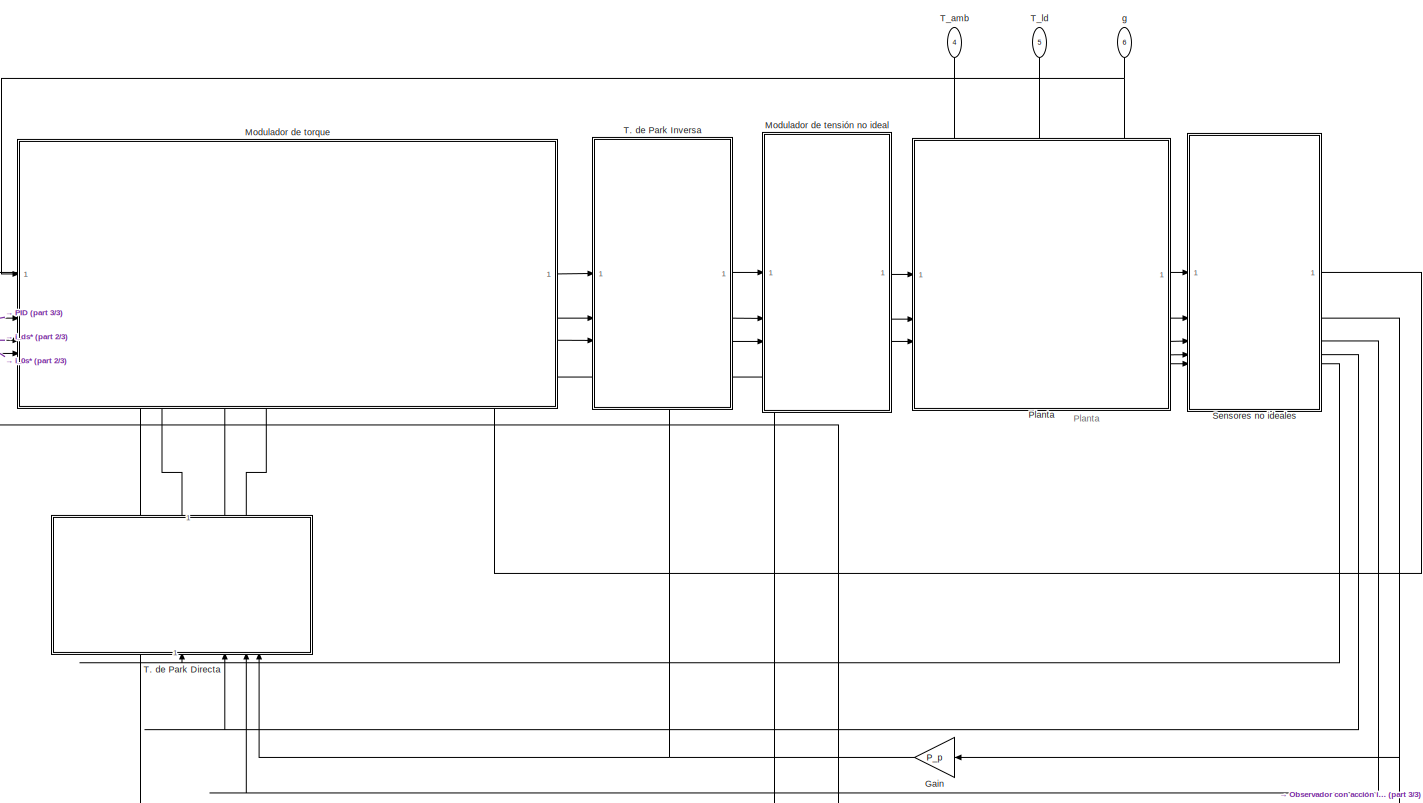
[diagram: root canvas - part 1/3, central region]
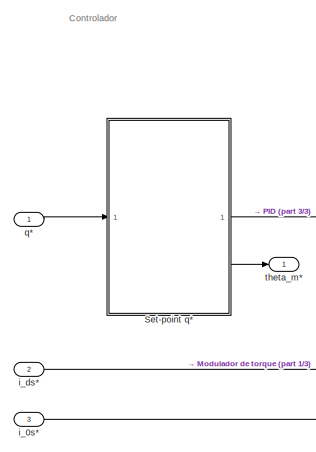
[diagram: root canvas - part 2/3, top left region]
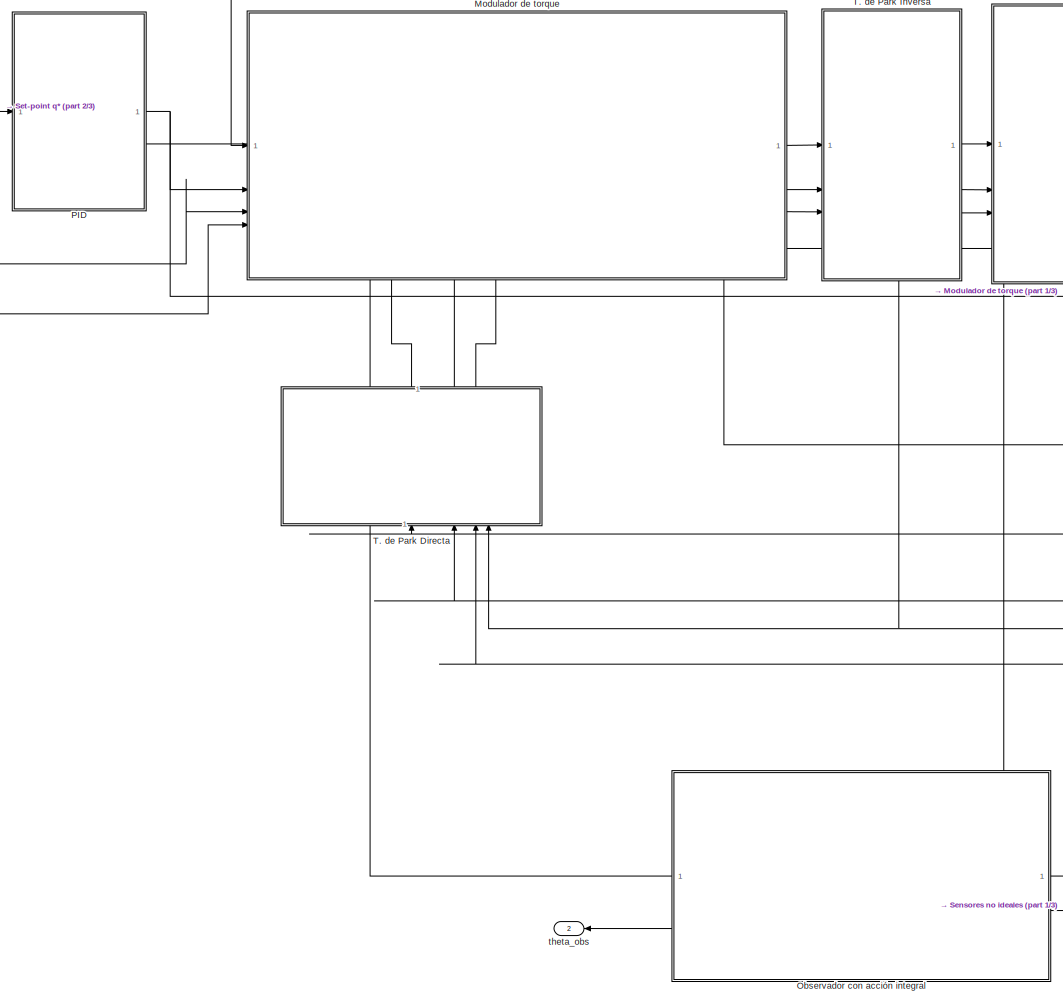
[diagram: root canvas - part 3/3, center side, full height]
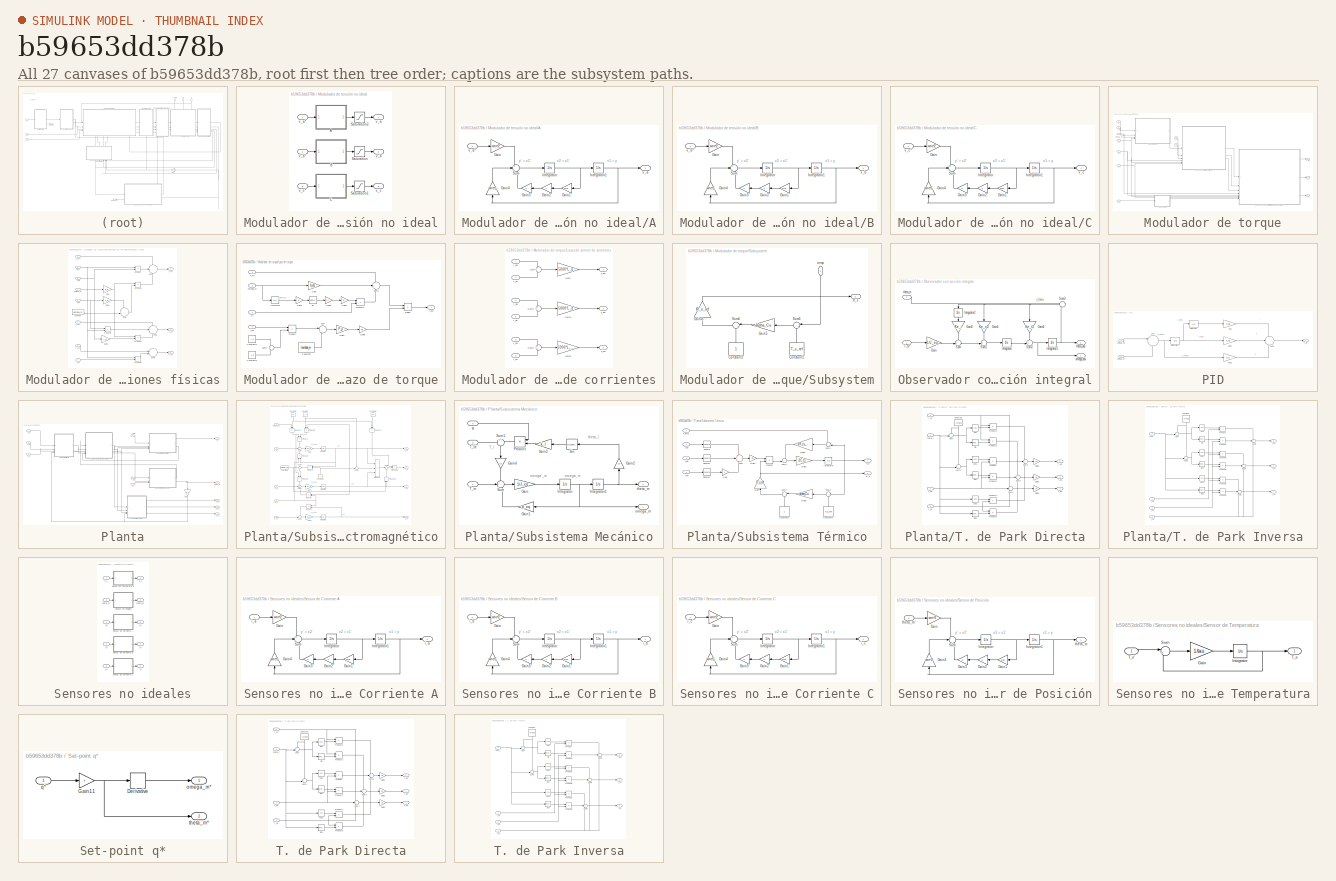
[diagram: thumbnail index - all 27 canvases of the model, root first then tree order]
MODEL slx_b59653dd378b
KIND model
CONFIG AbsTol = auto
CONFIG EnableMultiTasking = off
CONFIG FixedStep = auto
CONFIG MaxStep = auto
CONFIG MinStep = auto
CONFIG RelTol = 1e-3
CONFIG SampleTimeConstraint = Unconstrained
CONFIG SolverName = VariableStepAuto
CONFIG StartTime = 0.0
CONFIG StopTime = 10.0
BLOCK [Gain] Gain
  Gain = P_p
BLOCK [SubSystem] Modulador de tensión no ideal
  NameLocation = top
BLOCK [SubSystem] Modulador de tensión no ideal/A
BLOCK [Gain] Modulador de tensión no ideal/A/Gain
  Gain = wnc^2
BLOCK [Gain] Modulador de tensión no ideal/A/Gain1
  Gain = wnc
  NameLocation = top
BLOCK [Gain] Modulador de tensión no ideal/A/Gain2
  Gain = z
  NameLocation = top
BLOCK [Gain] Modulador de tensión no ideal/A/Gain3
  Gain = 2
  NameLocation = top
BLOCK [Gain] Modulador de tensión no ideal/A/Gain4
  Gain = wnc^2
  NameLocation = right
BLOCK [Integrator] Modulador de tensión no ideal/A/Integrator
BLOCK [Integrator] Modulador de tensión no ideal/A/Integrator1
BLOCK [Sum] Modulador de tensión no ideal/A/Sum
  Inputs = +--
BLOCK [Outport] Modulador de tensión no ideal/A/v_a
BLOCK [Inport] Modulador de tensión no ideal/A/v_a*
BLOCK [SubSystem] Modulador de tensión no ideal/B
BLOCK [Gain] Modulador de tensión no ideal/B/Gain
  Gain = wnc^2
BLOCK [Gain] Modulador de tensión no ideal/B/Gain1
  Gain = wnc
  NameLocation = top
BLOCK [Gain] Modulador de tensión no ideal/B/Gain2
  Gain = z
  NameLocation = top
BLOCK [Gain] Modulador de tensión no ideal/B/Gain3
  Gain = 2
  NameLocation = top
BLOCK [Gain] Modulador de tensión no ideal/B/Gain4
  Gain = wnc^2
  NameLocation = right
BLOCK [Integrator] Modulador de tensión no ideal/B/Integrator
BLOCK [Integrator] Modulador de tensión no ideal/B/Integrator1
BLOCK [Sum] Modulador de tensión no ideal/B/Sum
  Inputs = +--
BLOCK [Outport] Modulador de tensión no ideal/B/v_b
BLOCK [Inport] Modulador de tensión no ideal/B/v_b*
BLOCK [SubSystem] Modulador de tensión no ideal/C
BLOCK [Gain] Modulador de tensión no ideal/C/Gain
  Gain = wnc^2
BLOCK [Gain] Modulador de tensión no ideal/C/Gain1
  Gain = wnc
  NameLocation = top
BLOCK [Gain] Modulador de tensión no ideal/C/Gain2
  Gain = z
  NameLocation = top
BLOCK [Gain] Modulador de tensión no ideal/C/Gain3
  Gain = 2
  NameLocation = top
BLOCK [Gain] Modulador de tensión no ideal/C/Gain4
  Gain = wnc^2
  NameLocation = right
BLOCK [Integrator] Modulador de tensión no ideal/C/Integrator
BLOCK [Integrator] Modulador de tensión no ideal/C/Integrator1
BLOCK [Sum] Modulador de tensión no ideal/C/Sum
  Inputs = +--
BLOCK [Outport] Modulador de tensión no ideal/C/v_c
BLOCK [Inport] Modulador de tensión no ideal/C/v_c*
BLOCK [Saturate] Modulador de tensión no ideal/Saturation
  LowerLimit = -sat
  UpperLimit = sat
BLOCK [Saturate] Modulador de tensión no ideal/Saturation1
  LowerLimit = -sat
  UpperLimit = sat
BLOCK [Saturate] Modulador de tensión no ideal/Saturation2
  LowerLimit = -sat
  UpperLimit = sat
BLOCK [Outport] Modulador de tensión no ideal/v_a
BLOCK [Inport] Modulador de tensión no ideal/v_a*
BLOCK [Outport] Modulador de tensión no ideal/v_b
  Port = 2
BLOCK [Inport] Modulador de tensión no ideal/v_b*
  Port = 2
BLOCK [Outport] Modulador de tensión no ideal/v_c
  Port = 3
BLOCK [Inport] Modulador de tensión no ideal/v_c*
  Port = 3
BLOCK [SubSystem] Modulador de torque
  NameLocation = top
  PortSchema = {"entries":[{"content":{"sides":[{"content":{"connectorIds":["In1","In2","In3","In4"]},"type":"ConnectorPlacement.EquallySpacedRectSide","uuid":"92ac8522-395f-4ce3-8f5e-792626a83240"},{"content":{"connectorIds":["Out1","Out2","Out3"],"side":"RIGHT"},"type":"ConnectorPlacement.EquallySpacedRectSide","uuid":"b1f2c717-a268-4393-91e6-df0d77a5b9df"},{"content":{"side":"TOP"},"type":"ConnectorPlacement....<+427ch>
BLOCK [SubSystem] Modulador de torque/Compensación de retroalimentaciones físicas
  NameLocation = top
BLOCK [Constant] Modulador de torque/Compensación de retroalimentaciones físicas/Constant
  Value = lambda_m
BLOCK [Gain] Modulador de torque/Compensación de retroalimentaciones físicas/Gain
  Gain = P_p
BLOCK [Gain] Modulador de torque/Compensación de retroalimentaciones físicas/Gain1
  Gain = L_d
BLOCK [Gain] Modulador de torque/Compensación de retroalimentaciones físicas/Gain2
  Gain = L_q
BLOCK [Product] Modulador de torque/Compensación de retroalimentaciones físicas/Product
BLOCK [Product] Modulador de torque/Compensación de retroalimentaciones físicas/Product1
BLOCK [Product] Modulador de torque/Compensación de retroalimentaciones físicas/Product3
BLOCK [Product] Modulador de torque/Compensación de retroalimentaciones físicas/Product4
BLOCK [Product] Modulador de torque/Compensación de retroalimentaciones físicas/Product5
BLOCK [Inport] Modulador de torque/Compensación de retroalimentaciones físicas/R_s
  Port = 8
BLOCK [Sum] Modulador de torque/Compensación de retroalimentaciones físicas/Sum
  Inputs = +++
BLOCK [Sum] Modulador de torque/Compensación de retroalimentaciones físicas/Sum1
  Inputs = ++|
BLOCK [Sum] Modulador de torque/Compensación de retroalimentaciones físicas/Sum2
  Inputs = ++-
BLOCK [Sum] Modulador de torque/Compensación de retroalimentaciones físicas/Sum3
BLOCK [Inport] Modulador de torque/Compensación de retroalimentaciones físicas/i_0s
  Port = 7
BLOCK [Inport] Modulador de torque/Compensación de retroalimentaciones físicas/i_ds
  Port = 6
BLOCK [Inport] Modulador de torque/Compensación de retroalimentaciones físicas/i_qs
  Port = 5
BLOCK [Inport] Modulador de torque/Compensación de retroalimentaciones físicas/omega_m
  Port = 4
BLOCK [Outport] Modulador de torque/Compensación de retroalimentaciones físicas/v_0s
  Port = 3
BLOCK [Inport] Modulador de torque/Compensación de retroalimentaciones físicas/v_0s*
  Port = 3
BLOCK [Outport] Modulador de torque/Compensación de retroalimentaciones físicas/v_ds
  Port = 2
BLOCK [Inport] Modulador de torque/Compensación de retroalimentaciones físicas/v_ds*
  Port = 2
BLOCK [Outport] Modulador de torque/Compensación de retroalimentaciones físicas/v_qs
BLOCK [Inport] Modulador de torque/Compensación de retroalimentaciones físicas/v_qs*
BLOCK [SubSystem] Modulador de torque/Lazo de torque
  NameLocation = top
BLOCK [Constant] Modulador de torque/Lazo de torque/Constant
  Value = lambda_m
BLOCK [Constant] Modulador de torque/Lazo de torque/Constant1
  Value = L_d
BLOCK [Constant] Modulador de torque/Lazo de torque/Constant2
  Value = L_q
BLOCK [Product] Modulador de torque/Lazo de torque/Divide
  Inputs = */
BLOCK [Gain] Modulador de torque/Lazo de torque/Gain
  Gain = b_eq
BLOCK [Gain] Modulador de torque/Lazo de torque/Gain1
  Gain = 1/r
BLOCK [Gain] Modulador de torque/Lazo de torque/Gain2
  Gain = k_l
BLOCK [Gain] Modulador de torque/Lazo de torque/Gain4
  Gain = 1/r
BLOCK [Gain] Modulador de torque/Lazo de torque/Gain5
  Gain = 3/2
BLOCK [Gain] Modulador de torque/Lazo de torque/Gain7
  Gain = P_p
BLOCK [Integrator] Modulador de torque/Lazo de torque/Integrator
BLOCK [Product] Modulador de torque/Lazo de torque/Product
BLOCK [Product] Modulador de torque/Lazo de torque/Product1
BLOCK [Trigonometry] Modulador de torque/Lazo de torque/Sin
BLOCK [Sum] Modulador de torque/Lazo de torque/Sum
  Inputs = |++
BLOCK [Sum] Modulador de torque/Lazo de torque/Sum1
  Inputs = +++
BLOCK [Sum] Modulador de torque/Lazo de torque/Sum2
  Inputs = +-
BLOCK [Inport] Modulador de torque/Lazo de torque/T_m'*
  Port = 2
BLOCK [Inport] Modulador de torque/Lazo de torque/g
BLOCK [Inport] Modulador de torque/Lazo de torque/i_ds
  Port = 4
BLOCK [Outport] Modulador de torque/Lazo de torque/i_qs*
BLOCK [Inport] Modulador de torque/Lazo de torque/omega_m
  Port = 3
BLOCK [SubSystem] Modulador de torque/Lazos de control de corrientes
  NameLocation = top
BLOCK [Gain] Modulador de torque/Lazos de control de corrientes/Gain
  Gain = 5000*L_q
BLOCK [Gain] Modulador de torque/Lazos de control de corrientes/Gain1
  Gain = 5000*L_d
BLOCK [Gain] Modulador de torque/Lazos de control de corrientes/Gain2
  Gain = 5000*L_ls
BLOCK [Sum] Modulador de torque/Lazos de control de corrientes/Sum
  Inputs = +-
BLOCK [Sum] Modulador de torque/Lazos de control de corrientes/Sum1
  Inputs = +-
BLOCK [Sum] Modulador de torque/Lazos de control de corrientes/Sum2
  Inputs = +-
BLOCK [Inport] Modulador de torque/Lazos de control de corrientes/i_0s
  Port = 6
BLOCK [Inport] Modulador de torque/Lazos de control de corrientes/i_0s*
  Port = 3
BLOCK [Inport] Modulador de torque/Lazos de control de corrientes/i_ds
  Port = 5
BLOCK [Inport] Modulador de torque/Lazos de control de corrientes/i_ds*
  Port = 2
BLOCK [Inport] Modulador de torque/Lazos de control de corrientes/i_qs
  Port = 4
BLOCK [Inport] Modulador de torque/Lazos de control de corrientes/i_qs*
BLOCK [Outport] Modulador de torque/Lazos de control de corrientes/v_0s*
  Port = 3
BLOCK [Outport] Modulador de torque/Lazos de control de corrientes/v_ds*
  Port = 2
BLOCK [Outport] Modulador de torque/Lazos de control de corrientes/v_qs*
BLOCK [SubSystem] Modulador de torque/Subsystem
BLOCK [Constant] Modulador de torque/Subsystem/Constant1
  NameLocation = right
  Value = T_s_ref
BLOCK [Constant] Modulador de torque/Subsystem/Constant2
  NameLocation = right
BLOCK [Gain] Modulador de torque/Subsystem/Gain4
  Gain = R_s_ref
  NameLocation = right
BLOCK [Gain] Modulador de torque/Subsystem/Gain5
  Gain = alpha_Cu
BLOCK [Outport] Modulador de torque/Subsystem/R_s
BLOCK [Sum] Modulador de torque/Subsystem/Sum3
  Inputs = |+-
BLOCK [Sum] Modulador de torque/Subsystem/Sum4
  Inputs = |++
BLOCK [Inport] Modulador de torque/Subsystem/temp
  NameLocation = left
BLOCK [Inport] Modulador de torque/T_m'*
  Port = 2
BLOCK [Inport] Modulador de torque/T_s
  Port = 9
BLOCK [Inport] Modulador de torque/g
BLOCK [Inport] Modulador de torque/i_0s
  Port = 7
BLOCK [Inport] Modulador de torque/i_0s*
  Port = 4
BLOCK [Inport] Modulador de torque/i_ds
  Port = 6
BLOCK [Inport] Modulador de torque/i_ds*
  Port = 3
BLOCK [Inport] Modulador de torque/i_qs
  Port = 5
BLOCK [Inport] Modulador de torque/omega_m
  Port = 8
BLOCK [Outport] Modulador de torque/v_0s
  NameLocation = right
  Port = 3
BLOCK [Outport] Modulador de torque/v_ds
  Port = 2
BLOCK [Outport] Modulador de torque/v_qs
BLOCK [SubSystem] Observador con acción integral
  PortSchema = {"entries":[{"content":{"sides":[{"content":{"connectorIds":["Out1","Out2"]},"type":"ConnectorPlacement.EquallySpacedRectSide","uuid":"7f1ab875-1cda-4cac-85ff-ce07181c17e4"},{"content":{"connectorIds":["In1","In2"],"side":"RIGHT"},"type":"ConnectorPlacement.EquallySpacedRectSide","uuid":"6b91254d-cc96-42c9-a758-369a40099a6f"},{"content":{"side":"TOP"},"type":"ConnectorPlacement.EquallySpacedRectSi...<+235ch>
BLOCK [Gain] Observador con acción integral/Gain
  Gain = 1/J_eq
BLOCK [Gain] Observador con acción integral/Gain1
  Gain = Ke_o2
  NameLocation = left
BLOCK [Gain] Observador con acción integral/Gain2
  Gain = Ke_i
  NameLocation = left
BLOCK [Gain] Observador con acción integral/Gain3
  Gain = Ke_t2
  NameLocation = left
BLOCK [Integrator] Observador con acción integral/Integrator
BLOCK [Integrator] Observador con acción integral/Integrator1
BLOCK [Integrator] Observador con acción integral/Integrator2
  NameLocation = left
BLOCK [Sum] Observador con acción integral/Sum
  Inputs = ++|
BLOCK [Sum] Observador con acción integral/Sum1
  Inputs = ++|
BLOCK [Sum] Observador con acción integral/Sum2
  Inputs = ++|
BLOCK [Sum] Observador con acción integral/Sum3
  Inputs = +-
BLOCK [Inport] Observador con acción integral/T_m'*
BLOCK [Outport] Observador con acción integral/omega_obs
BLOCK [Inport] Observador con acción integral/theta_m
  Port = 2
BLOCK [Outport] Observador con acción integral/theta_obs
  Port = 2
BLOCK [SubSystem] PID
  NameLocation = top
BLOCK [Gain] PID/Gain
  Gain = K_sia
BLOCK [Gain] PID/Gain1
  Gain = K_sa
BLOCK [Gain] PID/Gain2
  Gain = b_a
BLOCK [Integrator] PID/Integrator
BLOCK [Integrator] PID/Integrator1
BLOCK [Sum] PID/Sum
  Inputs = |+-
BLOCK [Sum] PID/Sum1
  Inputs = +++
BLOCK [Outport] PID/T_m'*
BLOCK [Inport] PID/omega_m
  Port = 2
BLOCK [Inport] PID/omega_m*
BLOCK [SubSystem] Planta
  NameLocation = top
  PortSchema = {"entries":[{"content":{"sides":[{"content":{"connectorIds":["In1","In2","In3"]},"type":"ConnectorPlacement.EquallySpacedRectSide","uuid":"9ff39df0-8326-46b1-b650-24ffd78ea64a"},{"content":{"connectorIds":["Out1","Out2","Out3","Out4","Out5"],"side":"RIGHT"},"type":"ConnectorPlacement.EquallySpacedRectSide","uuid":"3d3bc9f1-e392-438d-8ee1-0a3eb241c21d"},{"content":{"connectorIds":["In4","In5","In6"...<+423ch>
BLOCK [Gain] Planta/Gain
  Gain = P_p
  NameLocation = left
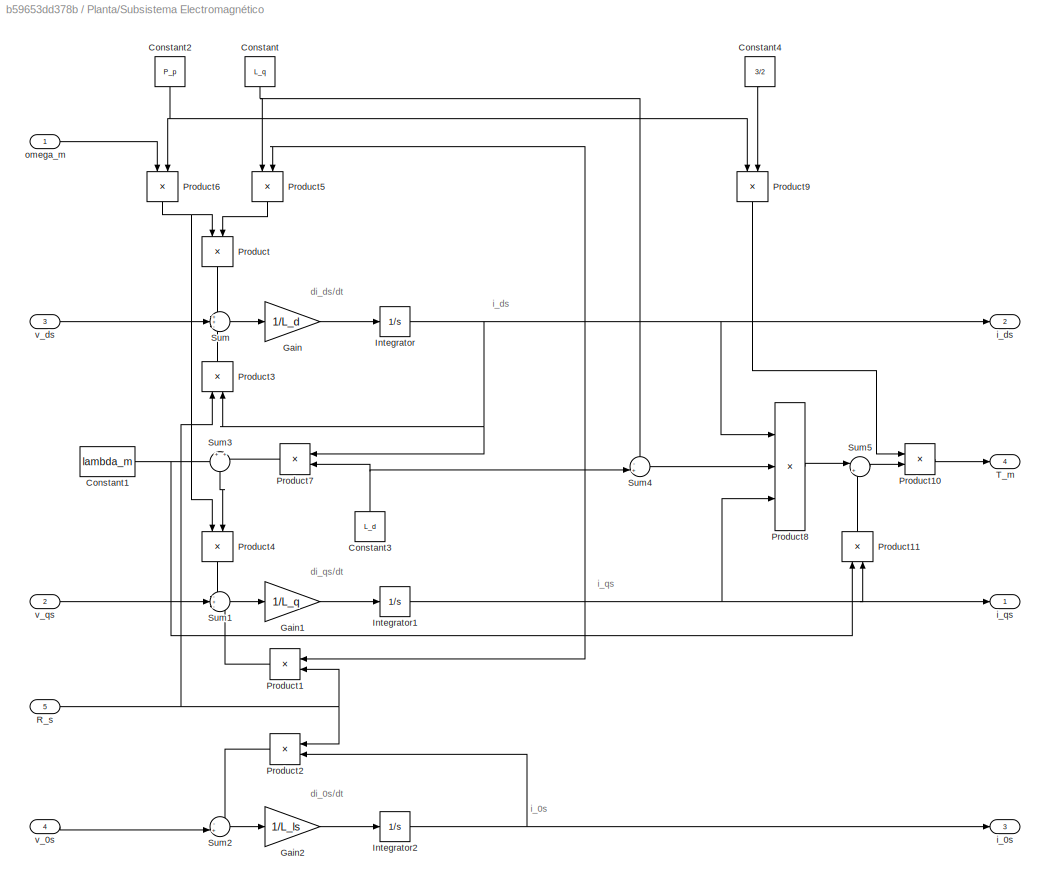
BLOCK [SubSystem] Planta/Subsistema Electromagnético
  NameLocation = top
BLOCK [Constant] Planta/Subsistema Electromagnético/Constant
  NameLocation = left
  Value = L_q
BLOCK [Constant] Planta/Subsistema Electromagnético/Constant1
  Value = lambda_m
BLOCK [Constant] Planta/Subsistema Electromagnético/Constant2
  NameLocation = left
  Value = P_p
BLOCK [Constant] Planta/Subsistema Electromagnético/Constant3
  NameLocation = right
  Value = L_d
BLOCK [Constant] Planta/Subsistema Electromagnético/Constant4
  NameLocation = left
  Value = 3/2
BLOCK [Gain] Planta/Subsistema Electromagnético/Gain
  Gain = 1/L_d
BLOCK [Gain] Planta/Subsistema Electromagnético/Gain1
  Gain = 1/L_q
BLOCK [Gain] Planta/Subsistema Electromagnético/Gain2
  Gain = 1/L_ls
BLOCK [Integrator] Planta/Subsistema Electromagnético/Integrator
BLOCK [Integrator] Planta/Subsistema Electromagnético/Integrator1
BLOCK [Integrator] Planta/Subsistema Electromagnético/Integrator2
BLOCK [Product] Planta/Subsistema Electromagnético/Product
  NameLocation = left
BLOCK [Product] Planta/Subsistema Electromagnético/Product1
BLOCK [Product] Planta/Subsistema Electromagnético/Product10
BLOCK [Product] Planta/Subsistema Electromagnético/Product11
  NameLocation = right
BLOCK [Product] Planta/Subsistema Electromagnético/Product2
BLOCK [Product] Planta/Subsistema Electromagnético/Product3
  NameLocation = left
BLOCK [Product] Planta/Subsistema Electromagnético/Product4
  NameLocation = left
BLOCK [Product] Planta/Subsistema Electromagnético/Product5
  NameLocation = left
BLOCK [Product] Planta/Subsistema Electromagnético/Product6
  NameLocation = left
BLOCK [Product] Planta/Subsistema Electromagnético/Product7
BLOCK [Product] Planta/Subsistema Electromagnético/Product8
  Inputs = 3
BLOCK [Product] Planta/Subsistema Electromagnético/Product9
  NameLocation = left
BLOCK [Inport] Planta/Subsistema Electromagnético/R_s
  Port = 5
BLOCK [Sum] Planta/Subsistema Electromagnético/Sum
  Inputs = ++-
BLOCK [Sum] Planta/Subsistema Electromagnético/Sum1
  Inputs = -+-
BLOCK [Sum] Planta/Subsistema Electromagnético/Sum2
  Inputs = -+|
BLOCK [Sum] Planta/Subsistema Electromagnético/Sum3
  Inputs = +|+
  NameLocation = left
BLOCK [Sum] Planta/Subsistema Electromagnético/Sum4
  Inputs = -+|
BLOCK [Sum] Planta/Subsistema Electromagnético/Sum5
  Inputs = |++
BLOCK [Outport] Planta/Subsistema Electromagnético/T_m
  Port = 4
BLOCK [Outport] Planta/Subsistema Electromagnético/i_0s
  Port = 3
BLOCK [Outport] Planta/Subsistema Electromagnético/i_ds
  Port = 2
BLOCK [Outport] Planta/Subsistema Electromagnético/i_qs
BLOCK [Inport] Planta/Subsistema Electromagnético/omega_m
BLOCK [Inport] Planta/Subsistema Electromagnético/v_0s
  Port = 4
BLOCK [Inport] Planta/Subsistema Electromagnético/v_ds
  Port = 3
BLOCK [Inport] Planta/Subsistema Electromagnético/v_qs
  Port = 2
BLOCK [SubSystem] Planta/Subsistema Mecánico
BLOCK [Gain] Planta/Subsistema Mecánico/Gain
  Gain = 1/J_eq
BLOCK [Gain] Planta/Subsistema Mecánico/Gain1
  Gain = b_eq
BLOCK [Gain] Planta/Subsistema Mecánico/Gain2
  Gain = 1/r
  NameLocation = right
BLOCK [Gain] Planta/Subsistema Mecánico/Gain3
  Gain = k_l
BLOCK [Gain] Planta/Subsistema Mecánico/Gain4
  Gain = 1/r
  NameLocation = right
BLOCK [Integrator] Planta/Subsistema Mecánico/Integrator
BLOCK [Integrator] Planta/Subsistema Mecánico/Integrator1
BLOCK [Product] Planta/Subsistema Mecánico/Product
BLOCK [Trigonometry] Planta/Subsistema Mecánico/Sin
BLOCK [Sum] Planta/Subsistema Mecánico/Sum
  Inputs = -+-
BLOCK [Sum] Planta/Subsistema Mecánico/Sum1
  NameLocation = left
BLOCK [Inport] Planta/Subsistema Mecánico/T_ld
  Port = 2
BLOCK [Inport] Planta/Subsistema Mecánico/T_m
BLOCK [Inport] Planta/Subsistema Mecánico/g
  Port = 3
BLOCK [Outport] Planta/Subsistema Mecánico/omega_m
BLOCK [Outport] Planta/Subsistema Mecánico/theta_m
  Port = 2
BLOCK [SubSystem] Planta/Subsistema Térmico
  NameLocation = top
BLOCK [Constant] Planta/Subsistema Térmico/Constant1
  NameLocation = right
  Value = T_s_ref
BLOCK [Constant] Planta/Subsistema Térmico/Constant2
  NameLocation = right
BLOCK [Gain] Planta/Subsistema Térmico/Gain
  Gain = 2
BLOCK [Gain] Planta/Subsistema Térmico/Gain1
  Gain = 3/2
BLOCK [Gain] Planta/Subsistema Térmico/Gain2
  Gain = 1/C_ts
BLOCK [Gain] Planta/Subsistema Térmico/Gain3
  Gain = 1/R_ts_amb
BLOCK [Gain] Planta/Subsistema Térmico/Gain4
  Gain = R_s_ref
  NameLocation = right
BLOCK [Gain] Planta/Subsistema Térmico/Gain5
  Gain = alpha_Cu
BLOCK [Integrator] Planta/Subsistema Térmico/Integrator
BLOCK [Product] Planta/Subsistema Térmico/Product
BLOCK [Outport] Planta/Subsistema Térmico/R_s
  Port = 2
BLOCK [Math] Planta/Subsistema Térmico/Square
  Operator = square
BLOCK [Math] Planta/Subsistema Térmico/Square1
  Operator = square
BLOCK [Math] Planta/Subsistema Térmico/Square2
  Operator = square
BLOCK [Sum] Planta/Subsistema Térmico/Sum
  Inputs = +++
BLOCK [Sum] Planta/Subsistema Térmico/Sum1
  Inputs = -+|
BLOCK [Sum] Planta/Subsistema Térmico/Sum2
  Inputs = -+|
BLOCK [Sum] Planta/Subsistema Térmico/Sum3
  Inputs = |+-
BLOCK [Sum] Planta/Subsistema Térmico/Sum4
  Inputs = |++
BLOCK [Inport] Planta/Subsistema Térmico/T_amb
BLOCK [Outport] Planta/Subsistema Térmico/T_s
BLOCK [Inport] Planta/Subsistema Térmico/i_0s
  Port = 4
BLOCK [Inport] Planta/Subsistema Térmico/i_ds
  Port = 3
BLOCK [Inport] Planta/Subsistema Térmico/i_qs
  Port = 2
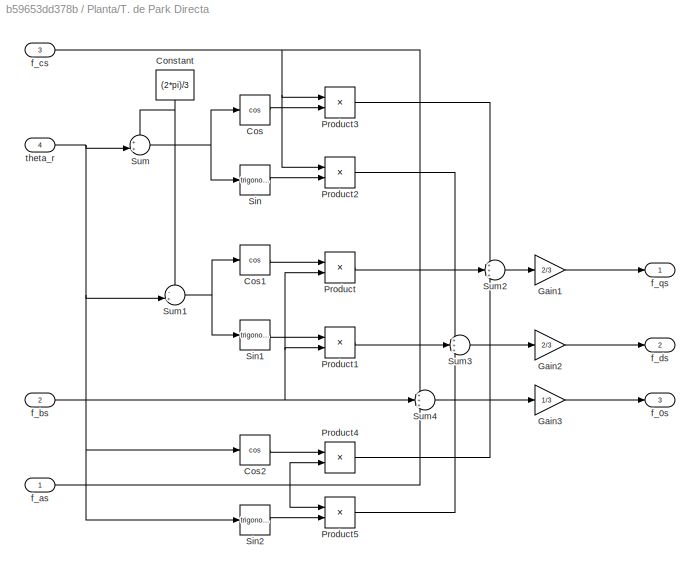
BLOCK [SubSystem] Planta/T. de Park Directa
  NameLocation = top
BLOCK [Constant] Planta/T. de Park Directa/Constant
  NameLocation = left
  Value = (2*pi)/3
BLOCK [Trigonometry] Planta/T. de Park Directa/Cos
  Operator = cos
BLOCK [Trigonometry] Planta/T. de Park Directa/Cos1
  Operator = cos
BLOCK [Trigonometry] Planta/T. de Park Directa/Cos2
  Operator = cos
BLOCK [Gain] Planta/T. de Park Directa/Gain1
  Gain = 2/3
BLOCK [Gain] Planta/T. de Park Directa/Gain2
  Gain = 2/3
BLOCK [Gain] Planta/T. de Park Directa/Gain3
  Gain = 1/3
BLOCK [Product] Planta/T. de Park Directa/Product
BLOCK [Product] Planta/T. de Park Directa/Product1
BLOCK [Product] Planta/T. de Park Directa/Product2
BLOCK [Product] Planta/T. de Park Directa/Product3
BLOCK [Product] Planta/T. de Park Directa/Product4
BLOCK [Product] Planta/T. de Park Directa/Product5
BLOCK [Trigonometry] Planta/T. de Park Directa/Sin
BLOCK [Trigonometry] Planta/T. de Park Directa/Sin1
BLOCK [Trigonometry] Planta/T. de Park Directa/Sin2
BLOCK [Sum] Planta/T. de Park Directa/Sum
  Inputs = ++|
BLOCK [Sum] Planta/T. de Park Directa/Sum1
  Inputs = -+|
BLOCK [Sum] Planta/T. de Park Directa/Sum2
  Inputs = +++
BLOCK [Sum] Planta/T. de Park Directa/Sum3
  Inputs = +++
BLOCK [Sum] Planta/T. de Park Directa/Sum4
  Inputs = +++
BLOCK [Outport] Planta/T. de Park Directa/f_0s
  Port = 3
BLOCK [Inport] Planta/T. de Park Directa/f_as
BLOCK [Inport] Planta/T. de Park Directa/f_bs
  Port = 2
BLOCK [Inport] Planta/T. de Park Directa/f_cs
  Port = 3
BLOCK [Outport] Planta/T. de Park Directa/f_ds
  Port = 2
BLOCK [Outport] Planta/T. de Park Directa/f_qs
BLOCK [Inport] Planta/T. de Park Directa/theta_r
  Port = 4
BLOCK [SubSystem] Planta/T. de Park Inversa
  NameLocation = top
BLOCK [Constant] Planta/T. de Park Inversa/Constant
  NameLocation = left
  Value = (2*pi)/3
BLOCK [Trigonometry] Planta/T. de Park Inversa/Cos
  Operator = cos
BLOCK [Trigonometry] Planta/T. de Park Inversa/Cos1
  Operator = cos
BLOCK [Trigonometry] Planta/T. de Park Inversa/Cos2
  Operator = cos
BLOCK [Product] Planta/T. de Park Inversa/Product
BLOCK [Product] Planta/T. de Park Inversa/Product1
BLOCK [Product] Planta/T. de Park Inversa/Product2
BLOCK [Product] Planta/T. de Park Inversa/Product3
BLOCK [Product] Planta/T. de Park Inversa/Product4
BLOCK [Product] Planta/T. de Park Inversa/Product5
BLOCK [Trigonometry] Planta/T. de Park Inversa/Sin
BLOCK [Trigonometry] Planta/T. de Park Inversa/Sin1
BLOCK [Trigonometry] Planta/T. de Park Inversa/Sin2
BLOCK [Sum] Planta/T. de Park Inversa/Sum
  Inputs = -+|
BLOCK [Sum] Planta/T. de Park Inversa/Sum1
  Inputs = ++|
BLOCK [Sum] Planta/T. de Park Inversa/Sum2
  Inputs = +++
BLOCK [Sum] Planta/T. de Park Inversa/Sum3
  Inputs = +++
BLOCK [Sum] Planta/T. de Park Inversa/Sum4
  Inputs = +++
BLOCK [Inport] Planta/T. de Park Inversa/f_0s
  Port = 3
BLOCK [Outport] Planta/T. de Park Inversa/f_as
BLOCK [Outport] Planta/T. de Park Inversa/f_bs
  Port = 2
BLOCK [Outport] Planta/T. de Park Inversa/f_cs
  Port = 3
BLOCK [Inport] Planta/T. de Park Inversa/f_ds
  Port = 2
BLOCK [Inport] Planta/T. de Park Inversa/f_qs
BLOCK [Inport] Planta/T. de Park Inversa/theta_r
  Port = 4
BLOCK [Inport] Planta/T_amb
  Port = 4
BLOCK [Inport] Planta/T_ld
  Port = 5
BLOCK [Outport] Planta/T_s
BLOCK [Inport] Planta/f_as
BLOCK [Outport] Planta/f_as1
  Port = 5
BLOCK [Inport] Planta/f_bs
  Port = 2
BLOCK [Outport] Planta/f_bs1
  Port = 4
BLOCK [Inport] Planta/f_cs
  Port = 3
BLOCK [Outport] Planta/f_cs1
  Port = 3
BLOCK [Inport] Planta/g
  Port = 6
BLOCK [Outport] Planta/theta_m
  Port = 2
BLOCK [SubSystem] Sensores no ideales
  NameLocation = top
BLOCK [SubSystem] Sensores no ideales/Sensor de Corriente A
BLOCK [Gain] Sensores no ideales/Sensor de Corriente A/Gain
  Gain = wnc^2
BLOCK [Gain] Sensores no ideales/Sensor de Corriente A/Gain1
  Gain = wnc
  NameLocation = top
BLOCK [Gain] Sensores no ideales/Sensor de Corriente A/Gain2
  Gain = z
  NameLocation = top
BLOCK [Gain] Sensores no ideales/Sensor de Corriente A/Gain3
  Gain = 2
  NameLocation = top
BLOCK [Gain] Sensores no ideales/Sensor de Corriente A/Gain4
  Gain = wnc^2
  NameLocation = right
BLOCK [Integrator] Sensores no ideales/Sensor de Corriente A/Integrator
BLOCK [Integrator] Sensores no ideales/Sensor de Corriente A/Integrator1
BLOCK [Sum] Sensores no ideales/Sensor de Corriente A/Sum
  Inputs = +--
BLOCK [Outport] Sensores no ideales/Sensor de Corriente A/i_a
BLOCK [Inport] Sensores no ideales/Sensor de Corriente A/i_a'
BLOCK [SubSystem] Sensores no ideales/Sensor de Corriente B
BLOCK [Gain] Sensores no ideales/Sensor de Corriente B/Gain
  Gain = wnc^2
BLOCK [Gain] Sensores no ideales/Sensor de Corriente B/Gain1
  Gain = wnc
  NameLocation = top
BLOCK [Gain] Sensores no ideales/Sensor de Corriente B/Gain2
  Gain = z
  NameLocation = top
BLOCK [Gain] Sensores no ideales/Sensor de Corriente B/Gain3
  Gain = 2
  NameLocation = top
BLOCK [Gain] Sensores no ideales/Sensor de Corriente B/Gain4
  Gain = wnc^2
  NameLocation = right
BLOCK [Integrator] Sensores no ideales/Sensor de Corriente B/Integrator
BLOCK [Integrator] Sensores no ideales/Sensor de Corriente B/Integrator1
BLOCK [Sum] Sensores no ideales/Sensor de Corriente B/Sum
  Inputs = +--
BLOCK [Outport] Sensores no ideales/Sensor de Corriente B/i_b
BLOCK [Inport] Sensores no ideales/Sensor de Corriente B/i_b'
BLOCK [SubSystem] Sensores no ideales/Sensor de Corriente C
BLOCK [Gain] Sensores no ideales/Sensor de Corriente C/Gain
  Gain = wnc^2
BLOCK [Gain] Sensores no ideales/Sensor de Corriente C/Gain1
  Gain = wnc
  NameLocation = top
BLOCK [Gain] Sensores no ideales/Sensor de Corriente C/Gain2
  Gain = z
  NameLocation = top
BLOCK [Gain] Sensores no ideales/Sensor de Corriente C/Gain3
  Gain = 2
  NameLocation = top
BLOCK [Gain] Sensores no ideales/Sensor de Corriente C/Gain4
  Gain = wnc^2
  NameLocation = right
BLOCK [Integrator] Sensores no ideales/Sensor de Corriente C/Integrator
BLOCK [Integrator] Sensores no ideales/Sensor de Corriente C/Integrator1
BLOCK [Sum] Sensores no ideales/Sensor de Corriente C/Sum
  Inputs = +--
BLOCK [Outport] Sensores no ideales/Sensor de Corriente C/i_c
BLOCK [Inport] Sensores no ideales/Sensor de Corriente C/i_c'
BLOCK [SubSystem] Sensores no ideales/Sensor de Posición
BLOCK [Gain] Sensores no ideales/Sensor de Posición/Gain
  Gain = wnt^2
BLOCK [Gain] Sensores no ideales/Sensor de Posición/Gain1
  Gain = wnt
  NameLocation = top
BLOCK [Gain] Sensores no ideales/Sensor de Posición/Gain2
  Gain = z
  NameLocation = top
BLOCK [Gain] Sensores no ideales/Sensor de Posición/Gain3
  Gain = 2
  NameLocation = top
BLOCK [Gain] Sensores no ideales/Sensor de Posición/Gain4
  Gain = wnt^2
  NameLocation = right
BLOCK [Integrator] Sensores no ideales/Sensor de Posición/Integrator
BLOCK [Integrator] Sensores no ideales/Sensor de Posición/Integrator1
BLOCK [Sum] Sensores no ideales/Sensor de Posición/Sum
  Inputs = +--
BLOCK [Outport] Sensores no ideales/Sensor de Posición/theta_m
BLOCK [Inport] Sensores no ideales/Sensor de Posición/theta_m'
BLOCK [SubSystem] Sensores no ideales/Sensor de Temperatura
BLOCK [Gain] Sensores no ideales/Sensor de Temperatura/Gain
  Gain = 1/tau
BLOCK [Integrator] Sensores no ideales/Sensor de Temperatura/Integrator
  InitialCondition = 25
BLOCK [Sum] Sensores no ideales/Sensor de Temperatura/Sum
  Inputs = |+-
BLOCK [Outport] Sensores no ideales/Sensor de Temperatura/T_s
BLOCK [Inport] Sensores no ideales/Sensor de Temperatura/T_s'
BLOCK [Outport] Sensores no ideales/T_s
BLOCK [Inport] Sensores no ideales/T_s'
BLOCK [Outport] Sensores no ideales/i_a
  Port = 3
BLOCK [Inport] Sensores no ideales/i_a'
  Port = 3
BLOCK [Outport] Sensores no ideales/i_b
  Port = 4
BLOCK [Inport] Sensores no ideales/i_b'
  Port = 4
BLOCK [Outport] Sensores no ideales/i_c
  Port = 5
BLOCK [Inport] Sensores no ideales/i_c'
  Port = 5
BLOCK [Outport] Sensores no ideales/theta_m
  Port = 2
BLOCK [Inport] Sensores no ideales/theta_m'
  Port = 2
BLOCK [SubSystem] Set-point q*
  NameLocation = top
BLOCK [Derivative] Set-point q*/Derivative
BLOCK [Gain] Set-point q*/Gain11
  Gain = r
BLOCK [Outport] Set-point q*/omega_m*
BLOCK [Inport] Set-point q*/q*
BLOCK [Outport] Set-point q*/theta_m*
  Port = 2
BLOCK [SubSystem] T. de Park Directa
  NameLocation = left
BLOCK [Constant] T. de Park Directa/Constant
  NameLocation = left
  Value = (2*pi)/3
BLOCK [Trigonometry] T. de Park Directa/Cos
  Operator = cos
BLOCK [Trigonometry] T. de Park Directa/Cos1
  Operator = cos
BLOCK [Trigonometry] T. de Park Directa/Cos2
  Operator = cos
BLOCK [Gain] T. de Park Directa/Gain1
  Gain = 2/3
BLOCK [Gain] T. de Park Directa/Gain2
  Gain = 2/3
BLOCK [Gain] T. de Park Directa/Gain3
  Gain = 1/3
BLOCK [Product] T. de Park Directa/Product
BLOCK [Product] T. de Park Directa/Product1
BLOCK [Product] T. de Park Directa/Product2
BLOCK [Product] T. de Park Directa/Product3
BLOCK [Product] T. de Park Directa/Product4
BLOCK [Product] T. de Park Directa/Product5
BLOCK [Trigonometry] T. de Park Directa/Sin
BLOCK [Trigonometry] T. de Park Directa/Sin1
BLOCK [Trigonometry] T. de Park Directa/Sin2
BLOCK [Sum] T. de Park Directa/Sum
  Inputs = ++|
BLOCK [Sum] T. de Park Directa/Sum1
  Inputs = -+|
BLOCK [Sum] T. de Park Directa/Sum2
  Inputs = +++
BLOCK [Sum] T. de Park Directa/Sum3
  Inputs = +++
BLOCK [Sum] T. de Park Directa/Sum4
  Inputs = +++
BLOCK [Outport] T. de Park Directa/f_0s
  Port = 3
BLOCK [Inport] T. de Park Directa/f_as
BLOCK [Inport] T. de Park Directa/f_bs
  Port = 2
BLOCK [Inport] T. de Park Directa/f_cs
  Port = 3
BLOCK [Outport] T. de Park Directa/f_ds
  Port = 2
BLOCK [Outport] T. de Park Directa/f_qs
BLOCK [Inport] T. de Park Directa/theta_r
  Port = 4
BLOCK [SubSystem] T. de Park Inversa
  NameLocation = top
  PortSchema = {"entries":[{"content":{"sides":[{"content":{"connectorIds":["In1","In2","In3"]},"type":"ConnectorPlacement.EquallySpacedRectSide","uuid":"87a6b8c1-3fd8-4d15-81b7-6d19a59b6fe3"},{"content":{"connectorIds":["Out1","Out2","Out3"],"side":"RIGHT"},"type":"ConnectorPlacement.EquallySpacedRectSide","uuid":"ab7c1476-3519-4f3e-a604-adca334ac53f"},{"content":{"side":"TOP"},"type":"ConnectorPlacement.Equall...<+397ch>
BLOCK [Constant] T. de Park Inversa/Constant
  NameLocation = left
  Value = (2*pi)/3
BLOCK [Trigonometry] T. de Park Inversa/Cos
  Operator = cos
BLOCK [Trigonometry] T. de Park Inversa/Cos1
  Operator = cos
BLOCK [Trigonometry] T. de Park Inversa/Cos2
  Operator = cos
BLOCK [Product] T. de Park Inversa/Product
BLOCK [Product] T. de Park Inversa/Product1
BLOCK [Product] T. de Park Inversa/Product2
BLOCK [Product] T. de Park Inversa/Product3
BLOCK [Product] T. de Park Inversa/Product4
BLOCK [Product] T. de Park Inversa/Product5
BLOCK [Trigonometry] T. de Park Inversa/Sin
BLOCK [Trigonometry] T. de Park Inversa/Sin1
BLOCK [Trigonometry] T. de Park Inversa/Sin2
BLOCK [Sum] T. de Park Inversa/Sum
  Inputs = -+|
BLOCK [Sum] T. de Park Inversa/Sum1
  Inputs = ++|
BLOCK [Sum] T. de Park Inversa/Sum2
  Inputs = +++
BLOCK [Sum] T. de Park Inversa/Sum3
  Inputs = +++
BLOCK [Sum] T. de Park Inversa/Sum4
  Inputs = +++
BLOCK [Inport] T. de Park Inversa/f_0s
  Port = 3
BLOCK [Outport] T. de Park Inversa/f_as
BLOCK [Outport] T. de Park Inversa/f_bs
  Port = 2
BLOCK [Outport] T. de Park Inversa/f_cs
  Port = 3
BLOCK [Inport] T. de Park Inversa/f_ds
  Port = 2
BLOCK [Inport] T. de Park Inversa/f_qs
BLOCK [Inport] T. de Park Inversa/theta_r
  Port = 4
BLOCK [Inport] T_amb
  NameLocation = left
  Port = 4
BLOCK [Inport] T_ld
  NameLocation = left
  Port = 5
BLOCK [Inport] g
  NameLocation = left
  Port = 6
BLOCK [Inport] i_0s*
  Port = 3
BLOCK [Inport] i_ds*
  Port = 2
BLOCK [Inport] q*
BLOCK [Outport] theta_m*
BLOCK [Outport] theta_obs
  Port = 2
ANNOTATION (root): Controlador
ANNOTATION (root): Planta
ANNOTATION Modulador de tensión no ideal/A: x1 = y
ANNOTATION Modulador de tensión no ideal/A: x2 = x1'
ANNOTATION Modulador de tensión no ideal/A: y' = x2'
ANNOTATION Modulador de tensión no ideal/B: x1 = y
ANNOTATION Modulador de tensión no ideal/B: x2 = x1'
ANNOTATION Modulador de tensión no ideal/B: y' = x2'
ANNOTATION Modulador de tensión no ideal/C: x1 = y
ANNOTATION Modulador de tensión no ideal/C: x2 = x1'
ANNOTATION Modulador de tensión no ideal/C: y' = x2'
ANNOTATION Modulador de torque/Lazo de torque: theta_m
ANNOTATION Observador con acción integral: e_theta
ANNOTATION PID: D
ANNOTATION PID: I
ANNOTATION PID: P
ANNOTATION PID: e_omega
ANNOTATION PID: e_theta
ANNOTATION Planta/Subsistema Electromagnético: di_0s/dt
ANNOTATION Planta/Subsistema Electromagnético: di_ds/dt
ANNOTATION Planta/Subsistema Electromagnético: di_qs/dt
ANNOTATION Planta/Subsistema Electromagnético: i_0s
ANNOTATION Planta/Subsistema Electromagnético: i_ds
ANNOTATION Planta/Subsistema Electromagnético: i_qs
ANNOTATION Planta/Subsistema Mecánico: T_l
ANNOTATION Planta/Subsistema Mecánico: omega'_m
ANNOTATION Planta/Subsistema Mecánico: omega_m
ANNOTATION Planta/Subsistema Mecánico: theta_l
ANNOTATION Sensores no ideales/Sensor de Corriente A: x1 = y
ANNOTATION Sensores no ideales/Sensor de Corriente A: x2 = x1'
ANNOTATION Sensores no ideales/Sensor de Corriente A: y' = x2'
ANNOTATION Sensores no ideales/Sensor de Corriente B: x1 = y
ANNOTATION Sensores no ideales/Sensor de Corriente B: x2 = x1'
ANNOTATION Sensores no ideales/Sensor de Corriente B: y' = x2'
ANNOTATION Sensores no ideales/Sensor de Corriente C: x1 = y
ANNOTATION Sensores no ideales/Sensor de Corriente C: x2 = x1'
ANNOTATION Sensores no ideales/Sensor de Corriente C: y' = x2'
ANNOTATION Sensores no ideales/Sensor de Posición: x1 = y
ANNOTATION Sensores no ideales/Sensor de Posición: x2 = x1'
ANNOTATION Sensores no ideales/Sensor de Posición: y' = x2'
NET Gain:1 -> T. de Park Directa:4, T. de Park Inversa:4
LINE Modulador de tensión no ideal/A/Gain1:1 -> Modulador de tensión no ideal/A/Gain2:1
LINE Modulador de tensión no ideal/A/Gain2:1 -> Modulador de tensión no ideal/A/Gain3:1
LINE Modulador de tensión no ideal/A/Gain3:1 -> Modulador de tensión no ideal/A/Sum:3
LINE Modulador de tensión no ideal/A/Gain4:1 -> Modulador de tensión no ideal/A/Sum:2
LINE Modulador de tensión no ideal/A/Gain:1 -> Modulador de tensión no ideal/A/Sum:1
NET Modulador de tensión no ideal/A/Integrator1:1 -> Modulador de tensión no ideal/A/Gain4:1, Modulador de tensión no ideal/A/v_a:1
NET Modulador de tensión no ideal/A/Integrator:1 -> Modulador de tensión no ideal/A/Gain1:1, Modulador de tensión no ideal/A/Integrator1:1
LINE Modulador de tensión no ideal/A/Sum:1 -> Modulador de tensión no ideal/A/Integrator:1
LINE Modulador de tensión no ideal/A/v_a*:1 -> Modulador de tensión no ideal/A/Gain:1
LINE Modulador de tensión no ideal/A:1 -> Modulador de tensión no ideal/Saturation2:1
LINE Modulador de tensión no ideal/B/Gain1:1 -> Modulador de tensión no ideal/B/Gain2:1
LINE Modulador de tensión no ideal/B/Gain2:1 -> Modulador de tensión no ideal/B/Gain3:1
LINE Modulador de tensión no ideal/B/Gain3:1 -> Modulador de tensión no ideal/B/Sum:3
LINE Modulador de tensión no ideal/B/Gain4:1 -> Modulador de tensión no ideal/B/Sum:2
LINE Modulador de tensión no ideal/B/Gain:1 -> Modulador de tensión no ideal/B/Sum:1
NET Modulador de tensión no ideal/B/Integrator1:1 -> Modulador de tensión no ideal/B/Gain4:1, Modulador de tensión no ideal/B/v_b:1
NET Modulador de tensión no ideal/B/Integrator:1 -> Modulador de tensión no ideal/B/Gain1:1, Modulador de tensión no ideal/B/Integrator1:1
LINE Modulador de tensión no ideal/B/Sum:1 -> Modulador de tensión no ideal/B/Integrator:1
LINE Modulador de tensión no ideal/B/v_b*:1 -> Modulador de tensión no ideal/B/Gain:1
LINE Modulador de tensión no ideal/B:1 -> Modulador de tensión no ideal/Saturation:1
LINE Modulador de tensión no ideal/C/Gain1:1 -> Modulador de tensión no ideal/C/Gain2:1
LINE Modulador de tensión no ideal/C/Gain2:1 -> Modulador de tensión no ideal/C/Gain3:1
LINE Modulador de tensión no ideal/C/Gain3:1 -> Modulador de tensión no ideal/C/Sum:3
LINE Modulador de tensión no ideal/C/Gain4:1 -> Modulador de tensión no ideal/C/Sum:2
LINE Modulador de tensión no ideal/C/Gain:1 -> Modulador de tensión no ideal/C/Sum:1
NET Modulador de tensión no ideal/C/Integrator1:1 -> Modulador de tensión no ideal/C/Gain4:1, Modulador de tensión no ideal/C/v_c:1
NET Modulador de tensión no ideal/C/Integrator:1 -> Modulador de tensión no ideal/C/Gain1:1, Modulador de tensión no ideal/C/Integrator1:1
LINE Modulador de tensión no ideal/C/Sum:1 -> Modulador de tensión no ideal/C/Integrator:1
LINE Modulador de tensión no ideal/C/v_c*:1 -> Modulador de tensión no ideal/C/Gain:1
LINE Modulador de tensión no ideal/C:1 -> Modulador de tensión no ideal/Saturation1:1
LINE Modulador de tensión no ideal/Saturation1:1 -> Modulador de tensión no ideal/v_c:1
LINE Modulador de tensión no ideal/Saturation2:1 -> Modulador de tensión no ideal/v_a:1
LINE Modulador de tensión no ideal/Saturation:1 -> Modulador de tensión no ideal/v_b:1
LINE Modulador de tensión no ideal/v_a*:1 -> Modulador de tensión no ideal/A:1
LINE Modulador de tensión no ideal/v_b*:1 -> Modulador de tensión no ideal/B:1
LINE Modulador de tensión no ideal/v_c*:1 -> Modulador de tensión no ideal/C:1
LINE Modulador de tensión no ideal:1 -> Planta:1
LINE Modulador de tensión no ideal:2 -> Planta:2
LINE Modulador de tensión no ideal:3 -> Planta:3
LINE Modulador de torque/Compensación de retroalimentaciones físicas/Constant:1 -> Modulador de torque/Compensación de retroalimentaciones físicas/Sum1:2
LINE Modulador de torque/Compensación de retroalimentaciones físicas/Gain1:1 -> Modulador de torque/Compensación de retroalimentaciones físicas/Sum1:1
LINE Modulador de torque/Compensación de retroalimentaciones físicas/Gain2:1 -> Modulador de torque/Compensación de retroalimentaciones físicas/Product4:2
NET Modulador de torque/Compensación de retroalimentaciones físicas/Gain:1 -> Modulador de torque/Compensación de retroalimentaciones físicas/Product1:1, Modulador de torque/Compensación de retroalimentaciones físicas/Product4:1
LINE Modulador de torque/Compensación de retroalimentaciones físicas/Product1:1 -> Modulador de torque/Compensación de retroalimentaciones físicas/Sum:3
LINE Modulador de torque/Compensación de retroalimentaciones físicas/Product3:1 -> Modulador de torque/Compensación de retroalimentaciones físicas/Sum2:2
LINE Modulador de torque/Compensación de retroalimentaciones físicas/Product4:1 -> Modulador de torque/Compensación de retroalimentaciones físicas/Sum2:3
LINE Modulador de torque/Compensación de retroalimentaciones físicas/Product5:1 -> Modulador de torque/Compensación de retroalimentaciones físicas/Sum3:2
LINE Modulador de torque/Compensación de retroalimentaciones físicas/Product:1 -> Modulador de torque/Compensación de retroalimentaciones físicas/Sum:2
NET Modulador de torque/Compensación de retroalimentaciones físicas/R_s:1 -> Modulador de torque/Compensación de retroalimentaciones físicas/Product3:2, Modulador de torque/Compensación de retroalimentaciones físicas/Product5:1, Modulador de torque/Compensación de retroalimentaciones físicas/Product:1
LINE Modulador de torque/Compensación de retroalimentaciones físicas/Sum1:1 -> Modulador de torque/Compensación de retroalimentaciones físicas/Product1:2
LINE Modulador de torque/Compensación de retroalimentaciones físicas/Sum2:1 -> Modulador de torque/Compensación de retroalimentaciones físicas/v_ds:1
LINE Modulador de torque/Compensación de retroalimentaciones físicas/Sum3:1 -> Modulador de torque/Compensación de retroalimentaciones físicas/v_0s:1
LINE Modulador de torque/Compensación de retroalimentaciones físicas/Sum:1 -> Modulador de torque/Compensación de retroalimentaciones físicas/v_qs:1
LINE Modulador de torque/Compensación de retroalimentaciones físicas/i_0s:1 -> Modulador de torque/Compensación de retroalimentaciones físicas/Product5:2
NET Modulador de torque/Compensación de retroalimentaciones físicas/i_ds:1 -> Modulador de torque/Compensación de retroalimentaciones físicas/Gain1:1, Modulador de torque/Compensación de retroalimentaciones físicas/Product3:1
NET Modulador de torque/Compensación de retroalimentaciones físicas/i_qs:1 -> Modulador de torque/Compensación de retroalimentaciones físicas/Gain2:1, Modulador de torque/Compensación de retroalimentaciones físicas/Product:2
LINE Modulador de torque/Compensación de retroalimentaciones físicas/omega_m:1 -> Modulador de torque/Compensación de retroalimentaciones físicas/Gain:1
LINE Modulador de torque/Compensación de retroalimentaciones físicas/v_0s*:1 -> Modulador de torque/Compensación de retroalimentaciones físicas/Sum3:1
LINE Modulador de torque/Compensación de retroalimentaciones físicas/v_ds*:1 -> Modulador de torque/Compensación de retroalimentaciones físicas/Sum2:1
LINE Modulador de torque/Compensación de retroalimentaciones físicas/v_qs*:1 -> Modulador de torque/Compensación de retroalimentaciones físicas/Sum:1
LINE Modulador de torque/Compensación de retroalimentaciones físicas:1 -> Modulador de torque/v_qs:1
LINE Modulador de torque/Compensación de retroalimentaciones físicas:2 -> Modulador de torque/v_ds:1
LINE Modulador de torque/Compensación de retroalimentaciones físicas:3 -> Modulador de torque/v_0s:1
LINE Modulador de torque/Lazo de torque/Constant1:1 -> Modulador de torque/Lazo de torque/Sum2:1
LINE Modulador de torque/Lazo de torque/Constant2:1 -> Modulador de torque/Lazo de torque/Sum2:2
LINE Modulador de torque/Lazo de torque/Constant:1 -> Modulador de torque/Lazo de torque/Sum:2
LINE Modulador de torque/Lazo de torque/Divide:1 -> Modulador de torque/Lazo de torque/i_qs*:1
LINE Modulador de torque/Lazo de torque/Gain1:1 -> Modulador de torque/Lazo de torque/Sin:1
LINE Modulador de torque/Lazo de torque/Gain2:1 -> Modulador de torque/Lazo de torque/Gain4:1
LINE Modulador de torque/Lazo de torque/Gain4:1 -> Modulador de torque/Lazo de torque/Product1:1
LINE Modulador de torque/Lazo de torque/Gain5:1 -> Modulador de torque/Lazo de torque/Divide:2
LINE Modulador de torque/Lazo de torque/Gain7:1 -> Modulador de torque/Lazo de torque/Gain5:1
LINE Modulador de torque/Lazo de torque/Gain:1 -> Modulador de torque/Lazo de torque/Sum1:2
LINE Modulador de torque/Lazo de torque/Integrator:1 -> Modulador de torque/Lazo de torque/Gain1:1
LINE Modulador de torque/Lazo de torque/Product1:1 -> Modulador de torque/Lazo de torque/Sum1:3
LINE Modulador de torque/Lazo de torque/Product:1 -> Modulador de torque/Lazo de torque/Sum:1
LINE Modulador de torque/Lazo de torque/Sin:1 -> Modulador de torque/Lazo de torque/Gain2:1
LINE Modulador de torque/Lazo de torque/Sum1:1 -> Modulador de torque/Lazo de torque/Divide:1
LINE Modulador de torque/Lazo de torque/Sum2:1 -> Modulador de torque/Lazo de torque/Product:2
LINE Modulador de torque/Lazo de torque/Sum:1 -> Modulador de torque/Lazo de torque/Gain7:1
LINE Modulador de torque/Lazo de torque/T_m'*:1 -> Modulador de torque/Lazo de torque/Sum1:1
LINE Modulador de torque/Lazo de torque/g:1 -> Modulador de torque/Lazo de torque/Product1:2
LINE Modulador de torque/Lazo de torque/i_ds:1 -> Modulador de torque/Lazo de torque/Product:1
NET Modulador de torque/Lazo de torque/omega_m:1 -> Modulador de torque/Lazo de torque/Gain:1, Modulador de torque/Lazo de torque/Integrator:1
LINE Modulador de torque/Lazo de torque:1 -> Modulador de torque/Lazos de control de corrientes:1
LINE Modulador de torque/Lazos de control de corrientes/Gain1:1 -> Modulador de torque/Lazos de control de corrientes/v_ds*:1
LINE Modulador de torque/Lazos de control de corrientes/Gain2:1 -> Modulador de torque/Lazos de control de corrientes/v_0s*:1
LINE Modulador de torque/Lazos de control de corrientes/Gain:1 -> Modulador de torque/Lazos de control de corrientes/v_qs*:1
LINE Modulador de torque/Lazos de control de corrientes/Sum1:1 -> Modulador de torque/Lazos de control de corrientes/Gain1:1
LINE Modulador de torque/Lazos de control de corrientes/Sum2:1 -> Modulador de torque/Lazos de control de corrientes/Gain2:1
LINE Modulador de torque/Lazos de control de corrientes/Sum:1 -> Modulador de torque/Lazos de control de corrientes/Gain:1
LINE Modulador de torque/Lazos de control de corrientes/i_0s*:1 -> Modulador de torque/Lazos de control de corrientes/Sum2:1
LINE Modulador de torque/Lazos de control de corrientes/i_0s:1 -> Modulador de torque/Lazos de control de corrientes/Sum2:2
LINE Modulador de torque/Lazos de control de corrientes/i_ds*:1 -> Modulador de torque/Lazos de control de corrientes/Sum1:1
LINE Modulador de torque/Lazos de control de corrientes/i_ds:1 -> Modulador de torque/Lazos de control de corrientes/Sum1:2
LINE Modulador de torque/Lazos de control de corrientes/i_qs*:1 -> Modulador de torque/Lazos de control de corrientes/Sum:1
LINE Modulador de torque/Lazos de control de corrientes/i_qs:1 -> Modulador de torque/Lazos de control de corrientes/Sum:2
LINE Modulador de torque/Lazos de control de corrientes:1 -> Modulador de torque/Compensación de retroalimentaciones físicas:1
LINE Modulador de torque/Lazos de control de corrientes:2 -> Modulador de torque/Compensación de retroalimentaciones físicas:2
LINE Modulador de torque/Lazos de control de corrientes:3 -> Modulador de torque/Compensación de retroalimentaciones físicas:3
LINE Modulador de torque/Subsystem/Constant1:1 -> Modulador de torque/Subsystem/Sum3:2
LINE Modulador de torque/Subsystem/Constant2:1 -> Modulador de torque/Subsystem/Sum4:2
LINE Modulador de torque/Subsystem/Gain4:1 -> Modulador de torque/Subsystem/R_s:1
LINE Modulador de torque/Subsystem/Gain5:1 -> Modulador de torque/Subsystem/Sum4:1
LINE Modulador de torque/Subsystem/Sum3:1 -> Modulador de torque/Subsystem/Gain5:1
LINE Modulador de torque/Subsystem/Sum4:1 -> Modulador de torque/Subsystem/Gain4:1
LINE Modulador de torque/Subsystem/temp:1 -> Modulador de torque/Subsystem/Sum3:1
LINE Modulador de torque/Subsystem:1 -> Modulador de torque/Compensación de retroalimentaciones físicas:8
LINE Modulador de torque/T_m'*:1 -> Modulador de torque/Lazo de torque:2
LINE Modulador de torque/T_s:1 -> Modulador de torque/Subsystem:1
LINE Modulador de torque/g:1 -> Modulador de torque/Lazo de torque:1
LINE Modulador de torque/i_0s*:1 -> Modulador de torque/Lazos de control de corrientes:3
NET Modulador de torque/i_0s:1 -> Modulador de torque/Compensación de retroalimentaciones físicas:7, Modulador de torque/Lazos de control de corrientes:6
LINE Modulador de torque/i_ds*:1 -> Modulador de torque/Lazos de control de corrientes:2
NET Modulador de torque/i_ds:1 -> Modulador de torque/Compensación de retroalimentaciones físicas:6, Modulador de torque/Lazo de torque:4, Modulador de torque/Lazos de control de corrientes:5
NET Modulador de torque/i_qs:1 -> Modulador de torque/Compensación de retroalimentaciones físicas:5, Modulador de torque/Lazos de control de corrientes:4
NET Modulador de torque/omega_m:1 -> Modulador de torque/Compensación de retroalimentaciones físicas:4, Modulador de torque/Lazo de torque:3
LINE Modulador de torque:1 -> T. de Park Inversa:1
LINE Modulador de torque:2 -> T. de Park Inversa:2
LINE Modulador de torque:3 -> T. de Park Inversa:3
LINE Observador con acción integral/Gain1:1 -> Observador con acción integral/Sum1:1
LINE Observador con acción integral/Gain2:1 -> Observador con acción integral/Sum:1
LINE Observador con acción integral/Gain3:1 -> Observador con acción integral/Sum2:1
LINE Observador con acción integral/Gain:1 -> Observador con acción integral/Sum:2
NET Observador con acción integral/Integrator1:1 -> Observador con acción integral/Sum3:2, Observador con acción integral/theta_obs:1
LINE Observador con acción integral/Integrator2:1 -> Observador con acción integral/Gain2:1
LINE Observador con acción integral/Integrator:1 -> Observador con acción integral/Sum2:2
LINE Observador con acción integral/Sum1:1 -> Observador con acción integral/Integrator:1
NET Observador con acción integral/Sum2:1 -> Observador con acción integral/Integrator1:1, Observador con acción integral/omega_obs:1
NET Observador con acción integral/Sum3:1 -> Observador con acción integral/Gain1:1, Observador con acción integral/Gain3:1, Observador con acción integral/Integrator2:1
LINE Observador con acción integral/Sum:1 -> Observador con acción integral/Sum1:2
LINE Observador con acción integral/T_m'*:1 -> Observador con acción integral/Gain:1
LINE Observador con acción integral/theta_m:1 -> Observador con acción integral/Sum3:1
NET Observador con acción integral:1 -> Modulador de torque:8, PID:2
LINE Observador con acción integral:2 -> theta_obs:1
LINE PID/Gain1:1 -> PID/Sum1:2
LINE PID/Gain2:1 -> PID/Sum1:3
LINE PID/Gain:1 -> PID/Sum1:1
NET PID/Integrator1:1 -> PID/Gain1:1, PID/Integrator:1
LINE PID/Integrator:1 -> PID/Gain:1
LINE PID/Sum1:1 -> PID/T_m'*:1
NET PID/Sum:1 -> PID/Gain2:1, PID/Integrator1:1
LINE PID/omega_m*:1 -> PID/Sum:1
LINE PID/omega_m:1 -> PID/Sum:2
NET PID:1 -> Modulador de torque:2, Observador con acción integral:1
NET Planta/Gain:1 -> Planta/T. de Park Directa:4, Planta/T. de Park Inversa:4
NET Planta/Subsistema Electromagnético/Constant1:1 -> Planta/Subsistema Electromagnético/Product11:1, Planta/Subsistema Electromagnético/Sum3:1
NET Planta/Subsistema Electromagnético/Constant2:1 -> Planta/Subsistema Electromagnético/Product6:2, Planta/Subsistema Electromagnético/Product9:1
NET Planta/Subsistema Electromagnético/Constant3:1 -> Planta/Subsistema Electromagnético/Product7:2, Planta/Subsistema Electromagnético/Sum4:2
LINE Planta/Subsistema Electromagnético/Constant4:1 -> Planta/Subsistema Electromagnético/Product9:2
NET Planta/Subsistema Electromagnético/Constant:1 -> Planta/Subsistema Electromagnético/Product5:1, Planta/Subsistema Electromagnético/Sum4:1
LINE Planta/Subsistema Electromagnético/Gain1:1 -> Planta/Subsistema Electromagnético/Integrator1:1
LINE Planta/Subsistema Electromagnético/Gain2:1 -> Planta/Subsistema Electromagnético/Integrator2:1
LINE Planta/Subsistema Electromagnético/Gain:1 -> Planta/Subsistema Electromagnético/Integrator:1
NET Planta/Subsistema Electromagnético/Integrator1:1 -> Planta/Subsistema Electromagnético/Product11:2, Planta/Subsistema Electromagnético/Product1:1, Planta/Subsistema Electromagnético/Product5:2, Planta/Subsistema Electromagnético/Product8:3, Planta/Subsistema Electromagnético/i_qs:1
NET Planta/Subsistema Electromagnético/Integrator2:1 -> Planta/Subsistema Electromagnético/Product2:2, Planta/Subsistema Electromagnético/i_0s:1
NET Planta/Subsistema Electromagnético/Integrator:1 -> Planta/Subsistema Electromagnético/Product3:2, Planta/Subsistema Electromagnético/Product7:1, Planta/Subsistema Electromagnético/Product8:1, Planta/Subsistema Electromagnético/i_ds:1
LINE Planta/Subsistema Electromagnético/Product10:1 -> Planta/Subsistema Electromagnético/T_m:1
LINE Planta/Subsistema Electromagnético/Product11:1 -> Planta/Subsistema Electromagnético/Sum5:2
LINE Planta/Subsistema Electromagnético/Product1:1 -> Planta/Subsistema Electromagnético/Sum1:3
LINE Planta/Subsistema Electromagnético/Product2:1 -> Planta/Subsistema Electromagnético/Sum2:1
LINE Planta/Subsistema Electromagnético/Product3:1 -> Planta/Subsistema Electromagnético/Sum:3
LINE Planta/Subsistema Electromagnético/Product4:1 -> Planta/Subsistema Electromagnético/Sum1:1
LINE Planta/Subsistema Electromagnético/Product5:1 -> Planta/Subsistema Electromagnético/Product:2
NET Planta/Subsistema Electromagnético/Product6:1 -> Planta/Subsistema Electromagnético/Product4:1, Planta/Subsistema Electromagnético/Product:1
LINE Planta/Subsistema Electromagnético/Product7:1 -> Planta/Subsistema Electromagnético/Sum3:2
LINE Planta/Subsistema Electromagnético/Product8:1 -> Planta/Subsistema Electromagnético/Sum5:1
LINE Planta/Subsistema Electromagnético/Product9:1 -> Planta/Subsistema Electromagnético/Product10:1
LINE Planta/Subsistema Electromagnético/Product:1 -> Planta/Subsistema Electromagnético/Sum:1
NET Planta/Subsistema Electromagnético/R_s:1 -> Planta/Subsistema Electromagnético/Product1:2, Planta/Subsistema Electromagnético/Product2:1, Planta/Subsistema Electromagnético/Product3:1
LINE Planta/Subsistema Electromagnético/Sum1:1 -> Planta/Subsistema Electromagnético/Gain1:1
LINE Planta/Subsistema Electromagnético/Sum2:1 -> Planta/Subsistema Electromagnético/Gain2:1
LINE Planta/Subsistema Electromagnético/Sum3:1 -> Planta/Subsistema Electromagnético/Product4:2
LINE Planta/Subsistema Electromagnético/Sum4:1 -> Planta/Subsistema Electromagnético/Product8:2
LINE Planta/Subsistema Electromagnético/Sum5:1 -> Planta/Subsistema Electromagnético/Product10:2
LINE Planta/Subsistema Electromagnético/Sum:1 -> Planta/Subsistema Electromagnético/Gain:1
LINE Planta/Subsistema Electromagnético/omega_m:1 -> Planta/Subsistema Electromagnético/Product6:1
LINE Planta/Subsistema Electromagnético/v_0s:1 -> Planta/Subsistema Electromagnético/Sum2:2
LINE Planta/Subsistema Electromagnético/v_ds:1 -> Planta/Subsistema Electromagnético/Sum:2
LINE Planta/Subsistema Electromagnético/v_qs:1 -> Planta/Subsistema Electromagnético/Sum1:2
NET Planta/Subsistema Electromagnético:1 -> Planta/Subsistema Térmico:2, Planta/T. de Park Inversa:1
NET Planta/Subsistema Electromagnético:2 -> Planta/Subsistema Térmico:3, Planta/T. de Park Inversa:2
NET Planta/Subsistema Electromagnético:3 -> Planta/Subsistema Térmico:4, Planta/T. de Park Inversa:3
LINE Planta/Subsistema Electromagnético:4 -> Planta/Subsistema Mecánico:1
LINE Planta/Subsistema Mecánico/Gain1:1 -> Planta/Subsistema Mecánico/Sum:3
LINE Planta/Subsistema Mecánico/Gain2:1 -> Planta/Subsistema Mecánico/Sin:1
LINE Planta/Subsistema Mecánico/Gain3:1 -> Planta/Subsistema Mecánico/Product:2
LINE Planta/Subsistema Mecánico/Gain4:1 -> Planta/Subsistema Mecánico/Sum:1
LINE Planta/Subsistema Mecánico/Gain:1 -> Planta/Subsistema Mecánico/Integrator:1
NET Planta/Subsistema Mecánico/Integrator1:1 -> Planta/Subsistema Mecánico/Gain2:1, Planta/Subsistema Mecánico/theta_m:1
NET Planta/Subsistema Mecánico/Integrator:1 -> Planta/Subsistema Mecánico/Gain1:1, Planta/Subsistema Mecánico/Integrator1:1, Planta/Subsistema Mecánico/omega_m:1
LINE Planta/Subsistema Mecánico/Product:1 -> Planta/Subsistema Mecánico/Sum1:2
LINE Planta/Subsistema Mecánico/Sin:1 -> Planta/Subsistema Mecánico/Gain3:1
LINE Planta/Subsistema Mecánico/Sum1:1 -> Planta/Subsistema Mecánico/Gain4:1
LINE Planta/Subsistema Mecánico/Sum:1 -> Planta/Subsistema Mecánico/Gain:1
LINE Planta/Subsistema Mecánico/T_ld:1 -> Planta/Subsistema Mecánico/Sum1:1
LINE Planta/Subsistema Mecánico/T_m:1 -> Planta/Subsistema Mecánico/Sum:2
LINE Planta/Subsistema Mecánico/g:1 -> Planta/Subsistema Mecánico/Product:1
LINE Planta/Subsistema Mecánico:1 -> Planta/Subsistema Electromagnético:1
NET Planta/Subsistema Mecánico:2 -> Planta/Gain:1, Planta/theta_m:1
LINE Planta/Subsistema Térmico/Constant1:1 -> Planta/Subsistema Térmico/Sum3:2
LINE Planta/Subsistema Térmico/Constant2:1 -> Planta/Subsistema Térmico/Sum4:2
LINE Planta/Subsistema Térmico/Gain1:1 -> Planta/Subsistema Térmico/Product:1
LINE Planta/Subsistema Térmico/Gain2:1 -> Planta/Subsistema Térmico/Integrator:1
LINE Planta/Subsistema Térmico/Gain3:1 -> Planta/Subsistema Térmico/Sum1:1
NET Planta/Subsistema Térmico/Gain4:1 -> Planta/Subsistema Térmico/Product:2, Planta/Subsistema Térmico/R_s:1
LINE Planta/Subsistema Térmico/Gain5:1 -> Planta/Subsistema Térmico/Sum4:1
LINE Planta/Subsistema Térmico/Gain:1 -> Planta/Subsistema Térmico/Sum:3
NET Planta/Subsistema Térmico/Integrator:1 -> Planta/Subsistema Térmico/Sum2:2, Planta/Subsistema Térmico/Sum3:1, Planta/Subsistema Térmico/T_s:1
LINE Planta/Subsistema Térmico/Product:1 -> Planta/Subsistema Térmico/Sum1:2
LINE Planta/Subsistema Térmico/Square1:1 -> Planta/Subsistema Térmico/Sum:2
LINE Planta/Subsistema Térmico/Square2:1 -> Planta/Subsistema Térmico/Gain:1
LINE Planta/Subsistema Térmico/Square:1 -> Planta/Subsistema Térmico/Sum:1
LINE Planta/Subsistema Térmico/Sum1:1 -> Planta/Subsistema Térmico/Gain2:1
LINE Planta/Subsistema Térmico/Sum2:1 -> Planta/Subsistema Térmico/Gain3:1
LINE Planta/Subsistema Térmico/Sum3:1 -> Planta/Subsistema Térmico/Gain5:1
LINE Planta/Subsistema Térmico/Sum4:1 -> Planta/Subsistema Térmico/Gain4:1
LINE Planta/Subsistema Térmico/Sum:1 -> Planta/Subsistema Térmico/Gain1:1
LINE Planta/Subsistema Térmico/T_amb:1 -> Planta/Subsistema Térmico/Sum2:1
LINE Planta/Subsistema Térmico/i_0s:1 -> Planta/Subsistema Térmico/Square2:1
LINE Planta/Subsistema Térmico/i_ds:1 -> Planta/Subsistema Térmico/Square1:1
LINE Planta/Subsistema Térmico/i_qs:1 -> Planta/Subsistema Térmico/Square:1
LINE Planta/Subsistema Térmico:1 -> Planta/T_s:1
LINE Planta/Subsistema Térmico:2 -> Planta/Subsistema Electromagnético:5
NET Planta/T. de Park Directa/Constant:1 -> Planta/T. de Park Directa/Sum1:1, Planta/T. de Park Directa/Sum:1
LINE Planta/T. de Park Directa/Cos1:1 -> Planta/T. de Park Directa/Product:1
LINE Planta/T. de Park Directa/Cos2:1 -> Planta/T. de Park Directa/Product4:1
LINE Planta/T. de Park Directa/Cos:1 -> Planta/T. de Park Directa/Product3:2
LINE Planta/T. de Park Directa/Gain1:1 -> Planta/T. de Park Directa/f_qs:1
LINE Planta/T. de Park Directa/Gain2:1 -> Planta/T. de Park Directa/f_ds:1
LINE Planta/T. de Park Directa/Gain3:1 -> Planta/T. de Park Directa/f_0s:1
LINE Planta/T. de Park Directa/Product1:1 -> Planta/T. de Park Directa/Sum3:2
LINE Planta/T. de Park Directa/Product2:1 -> Planta/T. de Park Directa/Sum3:1
LINE Planta/T. de Park Directa/Product3:1 -> Planta/T. de Park Directa/Sum2:1
LINE Planta/T. de Park Directa/Product4:1 -> Planta/T. de Park Directa/Sum2:3
LINE Planta/T. de Park Directa/Product5:1 -> Planta/T. de Park Directa/Sum3:3
LINE Planta/T. de Park Directa/Product:1 -> Planta/T. de Park Directa/Sum2:2
LINE Planta/T. de Park Directa/Sin1:1 -> Planta/T. de Park Directa/Product1:1
LINE Planta/T. de Park Directa/Sin2:1 -> Planta/T. de Park Directa/Product5:2
LINE Planta/T. de Park Directa/Sin:1 -> Planta/T. de Park Directa/Product2:2
NET Planta/T. de Park Directa/Sum1:1 -> Planta/T. de Park Directa/Cos1:1, Planta/T. de Park Directa/Sin1:1
LINE Planta/T. de Park Directa/Sum2:1 -> Planta/T. de Park Directa/Gain1:1
LINE Planta/T. de Park Directa/Sum3:1 -> Planta/T. de Park Directa/Gain2:1
LINE Planta/T. de Park Directa/Sum4:1 -> Planta/T. de Park Directa/Gain3:1
NET Planta/T. de Park Directa/Sum:1 -> Planta/T. de Park Directa/Cos:1, Planta/T. de Park Directa/Sin:1
NET Planta/T. de Park Directa/f_as:1 -> Planta/T. de Park Directa/Product4:2, Planta/T. de Park Directa/Product5:1, Planta/T. de Park Directa/Sum4:3
NET Planta/T. de Park Directa/f_bs:1 -> Planta/T. de Park Directa/Product1:2, Planta/T. de Park Directa/Product:2, Planta/T. de Park Directa/Sum4:2
NET Planta/T. de Park Directa/f_cs:1 -> Planta/T. de Park Directa/Product2:1, Planta/T. de Park Directa/Product3:1, Planta/T. de Park Directa/Sum4:1
NET Planta/T. de Park Directa/theta_r:1 -> Planta/T. de Park Directa/Cos2:1, Planta/T. de Park Directa/Sin2:1, Planta/T. de Park Directa/Sum1:2, Planta/T. de Park Directa/Sum:2
LINE Planta/T. de Park Directa:1 -> Planta/Subsistema Electromagnético:2
LINE Planta/T. de Park Directa:2 -> Planta/Subsistema Electromagnético:3
LINE Planta/T. de Park Directa:3 -> Planta/Subsistema Electromagnético:4
NET Planta/T. de Park Inversa/Constant:1 -> Planta/T. de Park Inversa/Sum1:1, Planta/T. de Park Inversa/Sum:1
LINE Planta/T. de Park Inversa/Cos1:1 -> Planta/T. de Park Inversa/Product4:1
LINE Planta/T. de Park Inversa/Cos2:1 -> Planta/T. de Park Inversa/Product2:1
LINE Planta/T. de Park Inversa/Cos:1 -> Planta/T. de Park Inversa/Product:1
LINE Planta/T. de Park Inversa/Product1:1 -> Planta/T. de Park Inversa/Sum3:2
LINE Planta/T. de Park Inversa/Product2:1 -> Planta/T. de Park Inversa/Sum2:1
LINE Planta/T. de Park Inversa/Product3:1 -> Planta/T. de Park Inversa/Sum2:2
LINE Planta/T. de Park Inversa/Product4:1 -> Planta/T. de Park Inversa/Sum4:1
LINE Planta/T. de Park Inversa/Product5:1 -> Planta/T. de Park Inversa/Sum4:2
LINE Planta/T. de Park Inversa/Product:1 -> Planta/T. de Park Inversa/Sum3:1
LINE Planta/T. de Park Inversa/Sin1:1 -> Planta/T. de Park Inversa/Product5:1
LINE Planta/T. de Park Inversa/Sin2:1 -> Planta/T. de Park Inversa/Product3:1
LINE Planta/T. de Park Inversa/Sin:1 -> Planta/T. de Park Inversa/Product1:1
NET Planta/T. de Park Inversa/Sum1:1 -> Planta/T. de Park Inversa/Cos1:1, Planta/T. de Park Inversa/Sin1:1
LINE Planta/T. de Park Inversa/Sum2:1 -> Planta/T. de Park Inversa/f_as:1
LINE Planta/T. de Park Inversa/Sum3:1 -> Planta/T. de Park Inversa/f_bs:1
LINE Planta/T. de Park Inversa/Sum4:1 -> Planta/T. de Park Inversa/f_cs:1
NET Planta/T. de Park Inversa/Sum:1 -> Planta/T. de Park Inversa/Cos:1, Planta/T. de Park Inversa/Sin:1
NET Planta/T. de Park Inversa/f_0s:1 -> Planta/T. de Park Inversa/Sum2:3, Planta/T. de Park Inversa/Sum3:3, Planta/T. de Park Inversa/Sum4:3
NET Planta/T. de Park Inversa/f_ds:1 -> Planta/T. de Park Inversa/Product1:2, Planta/T. de Park Inversa/Product3:2, Planta/T. de Park Inversa/Product5:2
NET Planta/T. de Park Inversa/f_qs:1 -> Planta/T. de Park Inversa/Product2:2, Planta/T. de Park Inversa/Product4:2, Planta/T. de Park Inversa/Product:2
NET Planta/T. de Park Inversa/theta_r:1 -> Planta/T. de Park Inversa/Cos2:1, Planta/T. de Park Inversa/Sin2:1, Planta/T. de Park Inversa/Sum1:2, Planta/T. de Park Inversa/Sum:2
LINE Planta/T. de Park Inversa:1 -> Planta/f_as1:1
LINE Planta/T. de Park Inversa:2 -> Planta/f_bs1:1
LINE Planta/T. de Park Inversa:3 -> Planta/f_cs1:1
LINE Planta/T_amb:1 -> Planta/Subsistema Térmico:1
LINE Planta/T_ld:1 -> Planta/Subsistema Mecánico:2
LINE Planta/f_as:1 -> Planta/T. de Park Directa:1
LINE Planta/f_bs:1 -> Planta/T. de Park Directa:2
LINE Planta/f_cs:1 -> Planta/T. de Park Directa:3
LINE Planta/g:1 -> Planta/Subsistema Mecánico:3
LINE Planta:1 -> Sensores no ideales:1
LINE Planta:2 -> Sensores no ideales:2
LINE Planta:3 -> Sensores no ideales:3
LINE Planta:4 -> Sensores no ideales:4
LINE Planta:5 -> Sensores no ideales:5
LINE Sensores no ideales/Sensor de Corriente A/Gain1:1 -> Sensores no ideales/Sensor de Corriente A/Gain2:1
LINE Sensores no ideales/Sensor de Corriente A/Gain2:1 -> Sensores no ideales/Sensor de Corriente A/Gain3:1
LINE Sensores no ideales/Sensor de Corriente A/Gain3:1 -> Sensores no ideales/Sensor de Corriente A/Sum:3
LINE Sensores no ideales/Sensor de Corriente A/Gain4:1 -> Sensores no ideales/Sensor de Corriente A/Sum:2
LINE Sensores no ideales/Sensor de Corriente A/Gain:1 -> Sensores no ideales/Sensor de Corriente A/Sum:1
NET Sensores no ideales/Sensor de Corriente A/Integrator1:1 -> Sensores no ideales/Sensor de Corriente A/Gain4:1, Sensores no ideales/Sensor de Corriente A/i_a:1
NET Sensores no ideales/Sensor de Corriente A/Integrator:1 -> Sensores no ideales/Sensor de Corriente A/Gain1:1, Sensores no ideales/Sensor de Corriente A/Integrator1:1
LINE Sensores no ideales/Sensor de Corriente A/Sum:1 -> Sensores no ideales/Sensor de Corriente A/Integrator:1
LINE Sensores no ideales/Sensor de Corriente A/i_a':1 -> Sensores no ideales/Sensor de Corriente A/Gain:1
LINE Sensores no ideales/Sensor de Corriente A:1 -> Sensores no ideales/i_a:1
LINE Sensores no ideales/Sensor de Corriente B/Gain1:1 -> Sensores no ideales/Sensor de Corriente B/Gain2:1
LINE Sensores no ideales/Sensor de Corriente B/Gain2:1 -> Sensores no ideales/Sensor de Corriente B/Gain3:1
LINE Sensores no ideales/Sensor de Corriente B/Gain3:1 -> Sensores no ideales/Sensor de Corriente B/Sum:3
LINE Sensores no ideales/Sensor de Corriente B/Gain4:1 -> Sensores no ideales/Sensor de Corriente B/Sum:2
LINE Sensores no ideales/Sensor de Corriente B/Gain:1 -> Sensores no ideales/Sensor de Corriente B/Sum:1
NET Sensores no ideales/Sensor de Corriente B/Integrator1:1 -> Sensores no ideales/Sensor de Corriente B/Gain4:1, Sensores no ideales/Sensor de Corriente B/i_b:1
NET Sensores no ideales/Sensor de Corriente B/Integrator:1 -> Sensores no ideales/Sensor de Corriente B/Gain1:1, Sensores no ideales/Sensor de Corriente B/Integrator1:1
LINE Sensores no ideales/Sensor de Corriente B/Sum:1 -> Sensores no ideales/Sensor de Corriente B/Integrator:1
LINE Sensores no ideales/Sensor de Corriente B/i_b':1 -> Sensores no ideales/Sensor de Corriente B/Gain:1
LINE Sensores no ideales/Sensor de Corriente B:1 -> Sensores no ideales/i_b:1
LINE Sensores no ideales/Sensor de Corriente C/Gain1:1 -> Sensores no ideales/Sensor de Corriente C/Gain2:1
LINE Sensores no ideales/Sensor de Corriente C/Gain2:1 -> Sensores no ideales/Sensor de Corriente C/Gain3:1
LINE Sensores no ideales/Sensor de Corriente C/Gain3:1 -> Sensores no ideales/Sensor de Corriente C/Sum:3
LINE Sensores no ideales/Sensor de Corriente C/Gain4:1 -> Sensores no ideales/Sensor de Corriente C/Sum:2
LINE Sensores no ideales/Sensor de Corriente C/Gain:1 -> Sensores no ideales/Sensor de Corriente C/Sum:1
NET Sensores no ideales/Sensor de Corriente C/Integrator1:1 -> Sensores no ideales/Sensor de Corriente C/Gain4:1, Sensores no ideales/Sensor de Corriente C/i_c:1
NET Sensores no ideales/Sensor de Corriente C/Integrator:1 -> Sensores no ideales/Sensor de Corriente C/Gain1:1, Sensores no ideales/Sensor de Corriente C/Integrator1:1
LINE Sensores no ideales/Sensor de Corriente C/Sum:1 -> Sensores no ideales/Sensor de Corriente C/Integrator:1
LINE Sensores no ideales/Sensor de Corriente C/i_c':1 -> Sensores no ideales/Sensor de Corriente C/Gain:1
LINE Sensores no ideales/Sensor de Corriente C:1 -> Sensores no ideales/i_c:1
LINE Sensores no ideales/Sensor de Posición/Gain1:1 -> Sensores no ideales/Sensor de Posición/Gain2:1
LINE Sensores no ideales/Sensor de Posición/Gain2:1 -> Sensores no ideales/Sensor de Posición/Gain3:1
LINE Sensores no ideales/Sensor de Posición/Gain3:1 -> Sensores no ideales/Sensor de Posición/Sum:3
LINE Sensores no ideales/Sensor de Posición/Gain4:1 -> Sensores no ideales/Sensor de Posición/Sum:2
LINE Sensores no ideales/Sensor de Posición/Gain:1 -> Sensores no ideales/Sensor de Posición/Sum:1
NET Sensores no ideales/Sensor de Posición/Integrator1:1 -> Sensores no ideales/Sensor de Posición/Gain4:1, Sensores no ideales/Sensor de Posición/theta_m:1
NET Sensores no ideales/Sensor de Posición/Integrator:1 -> Sensores no ideales/Sensor de Posición/Gain1:1, Sensores no ideales/Sensor de Posición/Integrator1:1
LINE Sensores no ideales/Sensor de Posición/Sum:1 -> Sensores no ideales/Sensor de Posición/Integrator:1
LINE Sensores no ideales/Sensor de Posición/theta_m':1 -> Sensores no ideales/Sensor de Posición/Gain:1
LINE Sensores no ideales/Sensor de Posición:1 -> Sensores no ideales/theta_m:1
LINE Sensores no ideales/Sensor de Temperatura/Gain:1 -> Sensores no ideales/Sensor de Temperatura/Integrator:1
NET Sensores no ideales/Sensor de Temperatura/Integrator:1 -> Sensores no ideales/Sensor de Temperatura/Sum:2, Sensores no ideales/Sensor de Temperatura/T_s:1
LINE Sensores no ideales/Sensor de Temperatura/Sum:1 -> Sensores no ideales/Sensor de Temperatura/Gain:1
LINE Sensores no ideales/Sensor de Temperatura/T_s':1 -> Sensores no ideales/Sensor de Temperatura/Sum:1
LINE Sensores no ideales/Sensor de Temperatura:1 -> Sensores no ideales/T_s:1
LINE Sensores no ideales/T_s':1 -> Sensores no ideales/Sensor de Temperatura:1
LINE Sensores no ideales/i_a':1 -> Sensores no ideales/Sensor de Corriente A:1
LINE Sensores no ideales/i_b':1 -> Sensores no ideales/Sensor de Corriente B:1
LINE Sensores no ideales/i_c':1 -> Sensores no ideales/Sensor de Corriente C:1
LINE Sensores no ideales/theta_m':1 -> Sensores no ideales/Sensor de Posición:1
LINE Sensores no ideales:1 -> Modulador de torque:9
NET Sensores no ideales:2 -> Gain:1, Observador con acción integral:2
LINE Sensores no ideales:3 -> T. de Park Directa:3
LINE Sensores no ideales:4 -> T. de Park Directa:2
LINE Sensores no ideales:5 -> T. de Park Directa:1
LINE Set-point q*/Derivative:1 -> Set-point q*/omega_m*:1
NET Set-point q*/Gain11:1 -> Set-point q*/Derivative:1, Set-point q*/theta_m*:1
LINE Set-point q*/q*:1 -> Set-point q*/Gain11:1
LINE Set-point q*:1 -> PID:1
LINE Set-point q*:2 -> theta_m*:1
NET T. de Park Directa/Constant:1 -> T. de Park Directa/Sum1:1, T. de Park Directa/Sum:1
LINE T. de Park Directa/Cos1:1 -> T. de Park Directa/Product:1
LINE T. de Park Directa/Cos2:1 -> T. de Park Directa/Product4:1
LINE T. de Park Directa/Cos:1 -> T. de Park Directa/Product3:2
LINE T. de Park Directa/Gain1:1 -> T. de Park Directa/f_qs:1
LINE T. de Park Directa/Gain2:1 -> T. de Park Directa/f_ds:1
LINE T. de Park Directa/Gain3:1 -> T. de Park Directa/f_0s:1
LINE T. de Park Directa/Product1:1 -> T. de Park Directa/Sum3:2
LINE T. de Park Directa/Product2:1 -> T. de Park Directa/Sum3:1
LINE T. de Park Directa/Product3:1 -> T. de Park Directa/Sum2:1
LINE T. de Park Directa/Product4:1 -> T. de Park Directa/Sum2:3
LINE T. de Park Directa/Product5:1 -> T. de Park Directa/Sum3:3
LINE T. de Park Directa/Product:1 -> T. de Park Directa/Sum2:2
LINE T. de Park Directa/Sin1:1 -> T. de Park Directa/Product1:1
LINE T. de Park Directa/Sin2:1 -> T. de Park Directa/Product5:2
LINE T. de Park Directa/Sin:1 -> T. de Park Directa/Product2:2
NET T. de Park Directa/Sum1:1 -> T. de Park Directa/Cos1:1, T. de Park Directa/Sin1:1
LINE T. de Park Directa/Sum2:1 -> T. de Park Directa/Gain1:1
LINE T. de Park Directa/Sum3:1 -> T. de Park Directa/Gain2:1
LINE T. de Park Directa/Sum4:1 -> T. de Park Directa/Gain3:1
NET T. de Park Directa/Sum:1 -> T. de Park Directa/Cos:1, T. de Park Directa/Sin:1
NET T. de Park Directa/f_as:1 -> T. de Park Directa/Product4:2, T. de Park Directa/Product5:1, T. de Park Directa/Sum4:3
NET T. de Park Directa/f_bs:1 -> T. de Park Directa/Product1:2, T. de Park Directa/Product:2, T. de Park Directa/Sum4:2
NET T. de Park Directa/f_cs:1 -> T. de Park Directa/Product2:1, T. de Park Directa/Product3:1, T. de Park Directa/Sum4:1
NET T. de Park Directa/theta_r:1 -> T. de Park Directa/Cos2:1, T. de Park Directa/Sin2:1, T. de Park Directa/Sum1:2, T. de Park Directa/Sum:2
LINE T. de Park Directa:1 -> Modulador de torque:5
LINE T. de Park Directa:2 -> Modulador de torque:6
LINE T. de Park Directa:3 -> Modulador de torque:7
NET T. de Park Inversa/Constant:1 -> T. de Park Inversa/Sum1:1, T. de Park Inversa/Sum:1
LINE T. de Park Inversa/Cos1:1 -> T. de Park Inversa/Product4:1
LINE T. de Park Inversa/Cos2:1 -> T. de Park Inversa/Product2:1
LINE T. de Park Inversa/Cos:1 -> T. de Park Inversa/Product:1
LINE T. de Park Inversa/Product1:1 -> T. de Park Inversa/Sum3:2
LINE T. de Park Inversa/Product2:1 -> T. de Park Inversa/Sum2:1
LINE T. de Park Inversa/Product3:1 -> T. de Park Inversa/Sum2:2
LINE T. de Park Inversa/Product4:1 -> T. de Park Inversa/Sum4:1
LINE T. de Park Inversa/Product5:1 -> T. de Park Inversa/Sum4:2
LINE T. de Park Inversa/Product:1 -> T. de Park Inversa/Sum3:1
LINE T. de Park Inversa/Sin1:1 -> T. de Park Inversa/Product5:1
LINE T. de Park Inversa/Sin2:1 -> T. de Park Inversa/Product3:1
LINE T. de Park Inversa/Sin:1 -> T. de Park Inversa/Product1:1
NET T. de Park Inversa/Sum1:1 -> T. de Park Inversa/Cos1:1, T. de Park Inversa/Sin1:1
LINE T. de Park Inversa/Sum2:1 -> T. de Park Inversa/f_as:1
LINE T. de Park Inversa/Sum3:1 -> T. de Park Inversa/f_bs:1
LINE T. de Park Inversa/Sum4:1 -> T. de Park Inversa/f_cs:1
NET T. de Park Inversa/Sum:1 -> T. de Park Inversa/Cos:1, T. de Park Inversa/Sin:1
NET T. de Park Inversa/f_0s:1 -> T. de Park Inversa/Sum2:3, T. de Park Inversa/Sum3:3, T. de Park Inversa/Sum4:3
NET T. de Park Inversa/f_ds:1 -> T. de Park Inversa/Product1:2, T. de Park Inversa/Product3:2, T. de Park Inversa/Product5:2
NET T. de Park Inversa/f_qs:1 -> T. de Park Inversa/Product2:2, T. de Park Inversa/Product4:2, T. de Park Inversa/Product:2
NET T. de Park Inversa/theta_r:1 -> T. de Park Inversa/Cos2:1, T. de Park Inversa/Sin2:1, T. de Park Inversa/Sum1:2, T. de Park Inversa/Sum:2
LINE T. de Park Inversa:1 -> Modulador de tensión no ideal:1
LINE T. de Park Inversa:2 -> Modulador de tensión no ideal:2
LINE T. de Park Inversa:3 -> Modulador de tensión no ideal:3
LINE T_amb:1 -> Planta:4
LINE T_ld:1 -> Planta:5
NET g:1 -> Modulador de torque:1, Planta:6
LINE i_0s*:1 -> Modulador de torque:4
LINE i_ds*:1 -> Modulador de torque:3
LINE q*:1 -> Set-point q*:1
note: NET lines group one-source signal fan-out (src -> all destinations, sorted); 1:1 wires keep LINE
